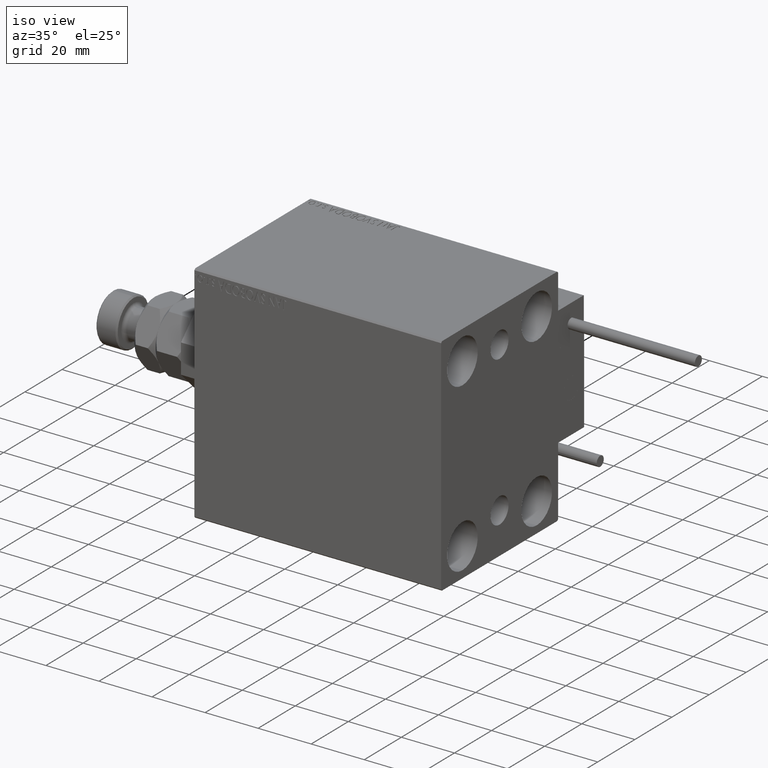
[diagram: clean part render]
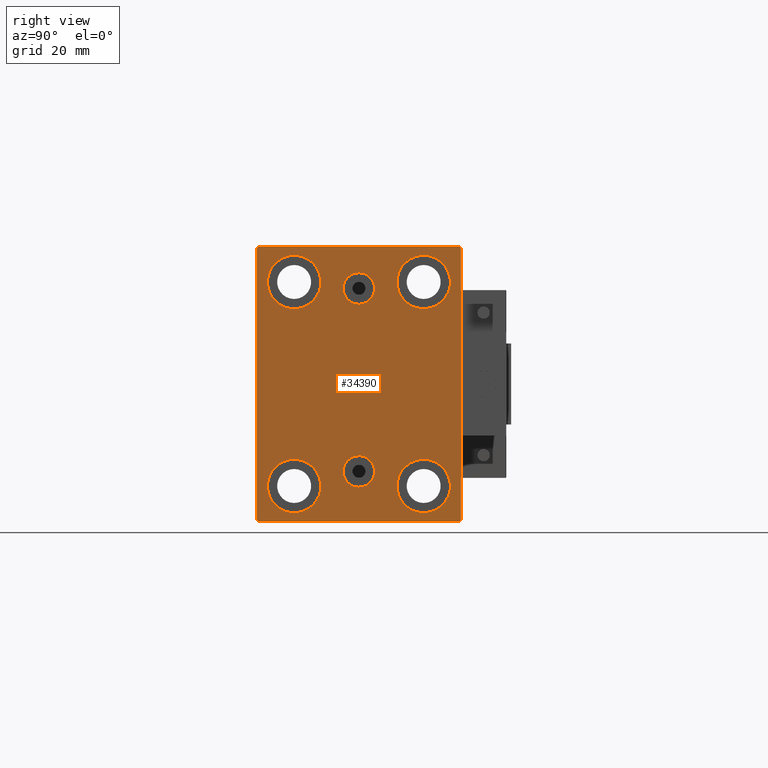
[diagram: tour spotlight — one face highlighted and labeled with its STEP entity id]
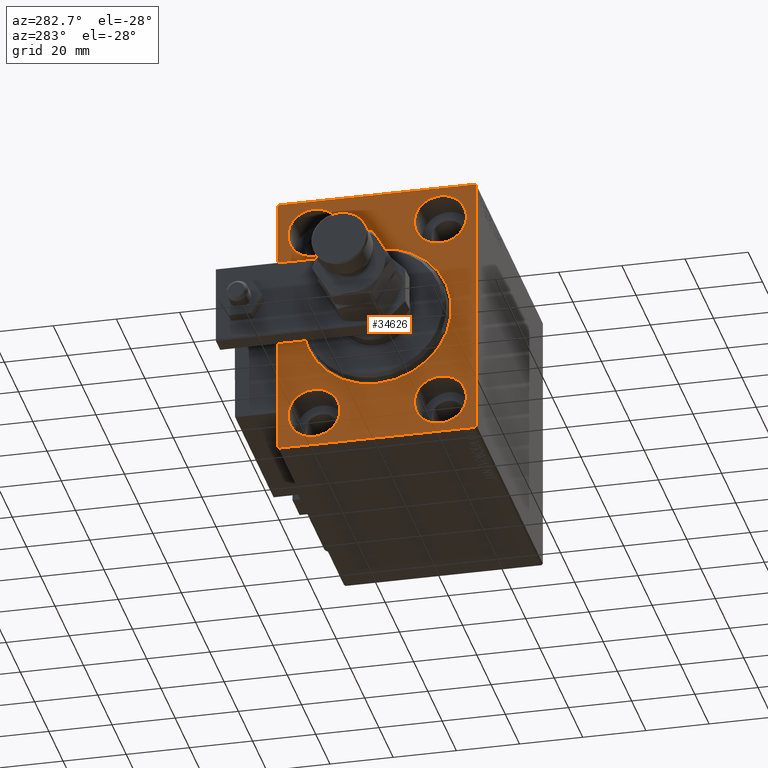
[diagram: tour spotlight — one face highlighted and labeled with its STEP entity id]
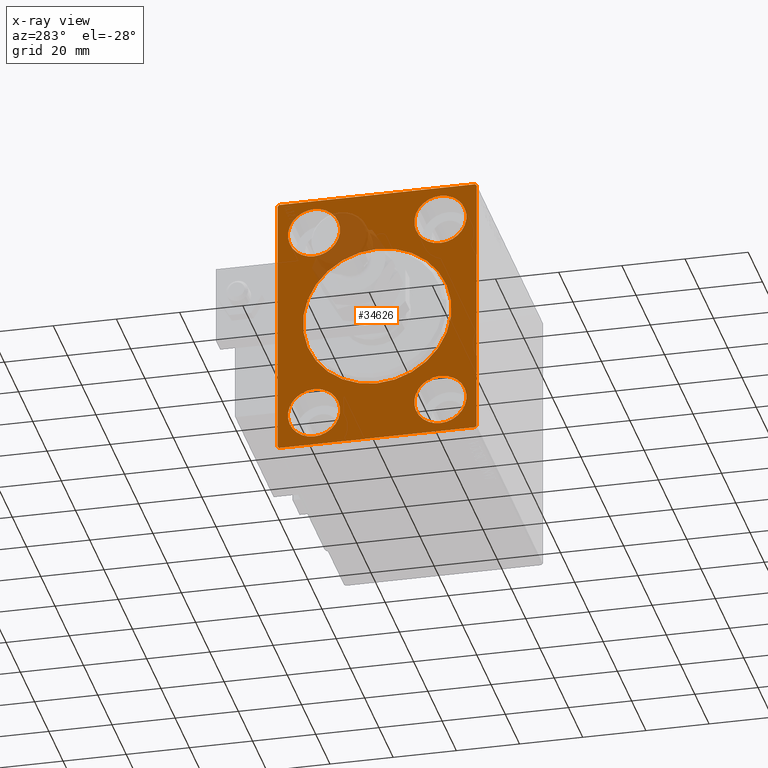
[diagram: x-ray of the same camera — body ghosted, this tour face saturated]
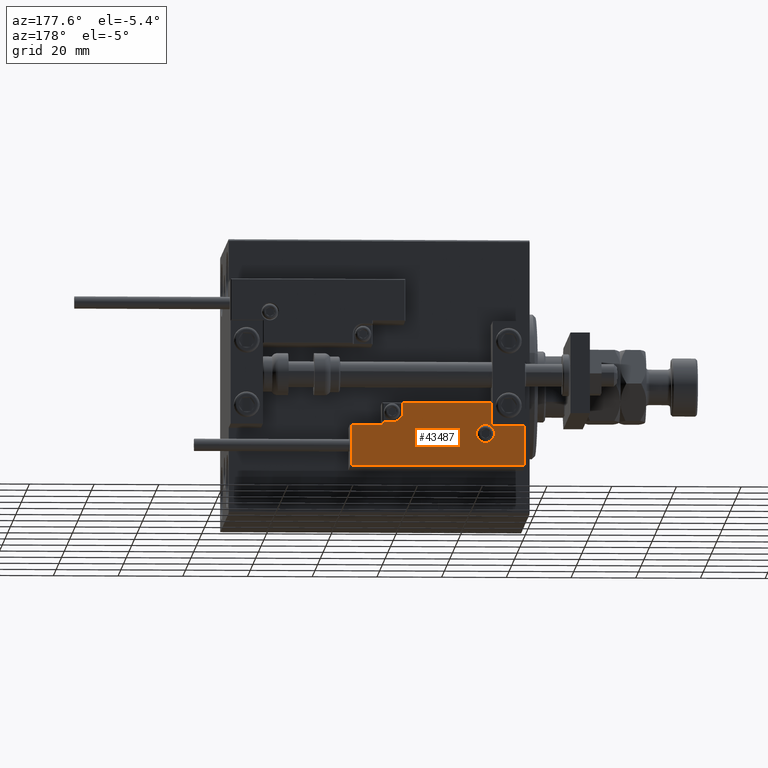
[diagram: tour spotlight — one face highlighted and labeled with its STEP entity id]
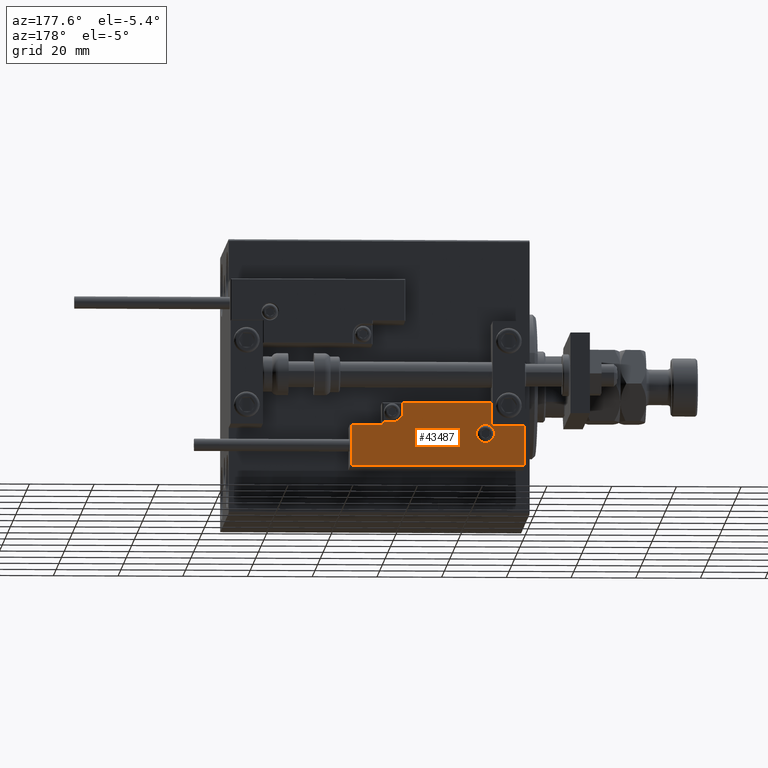
[diagram: tour spotlight — one face highlighted and labeled with its STEP entity id]
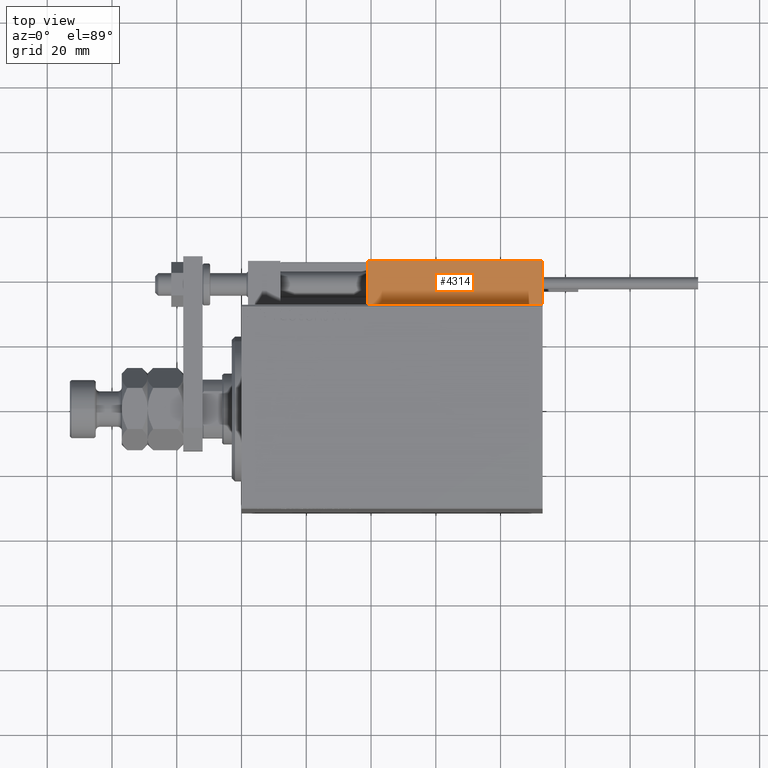
[diagram: tour spotlight — one face highlighted and labeled with its STEP entity id]
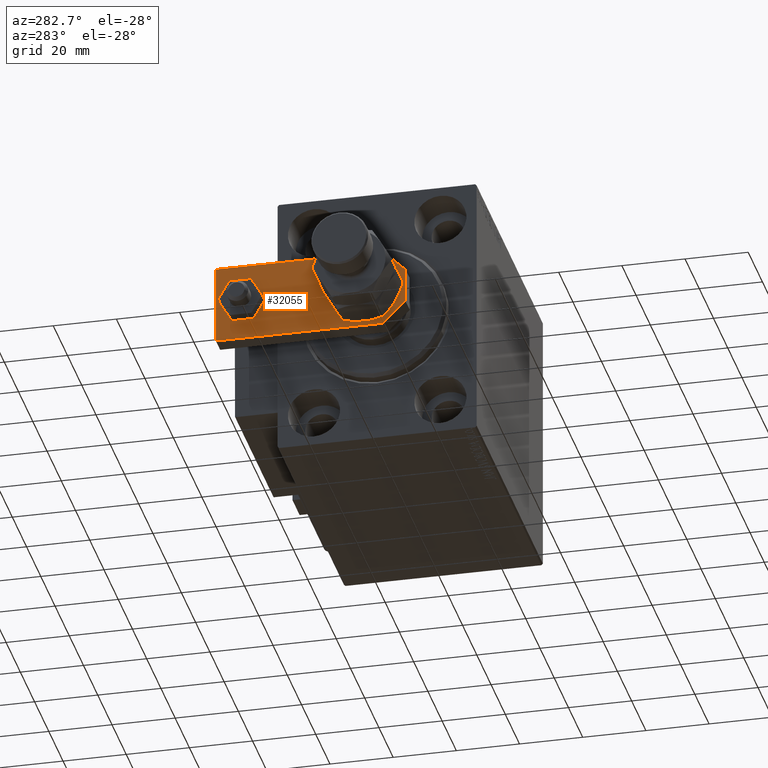
[diagram: tour spotlight — one face highlighted and labeled with its STEP entity id]
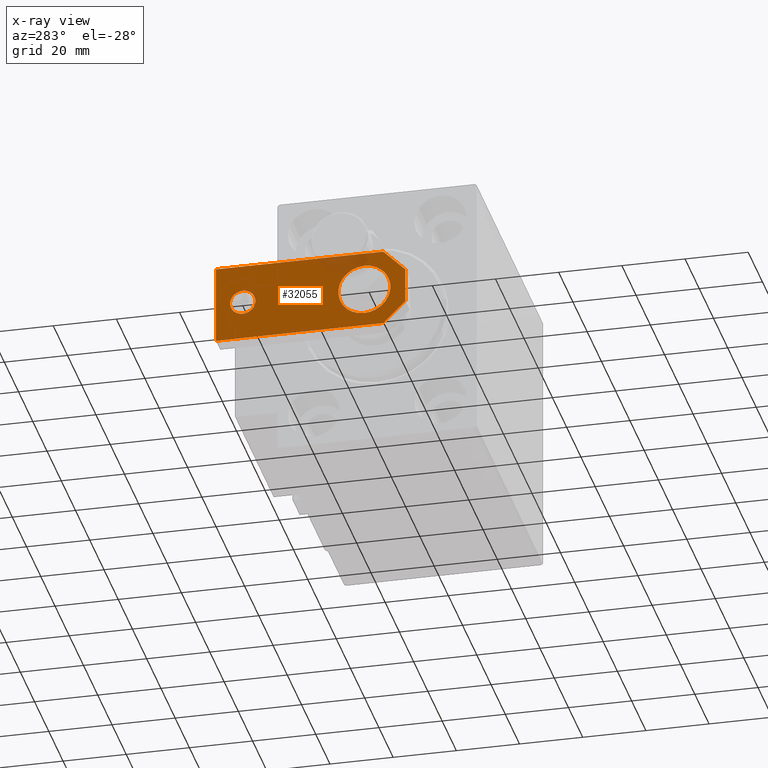
[diagram: x-ray of the same camera — body ghosted, this tour face saturated]
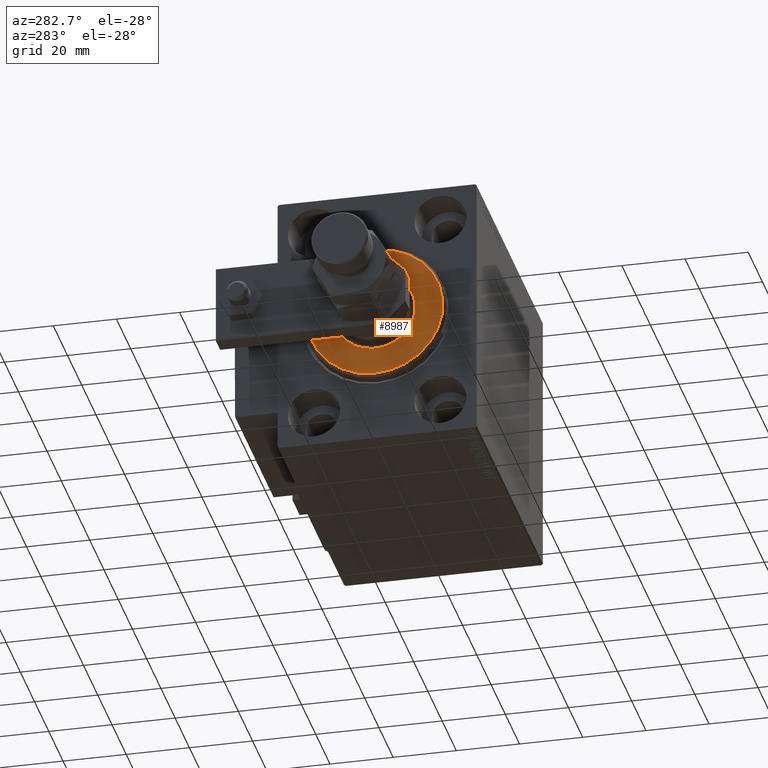
[diagram: tour spotlight — one face highlighted and labeled with its STEP entity id]
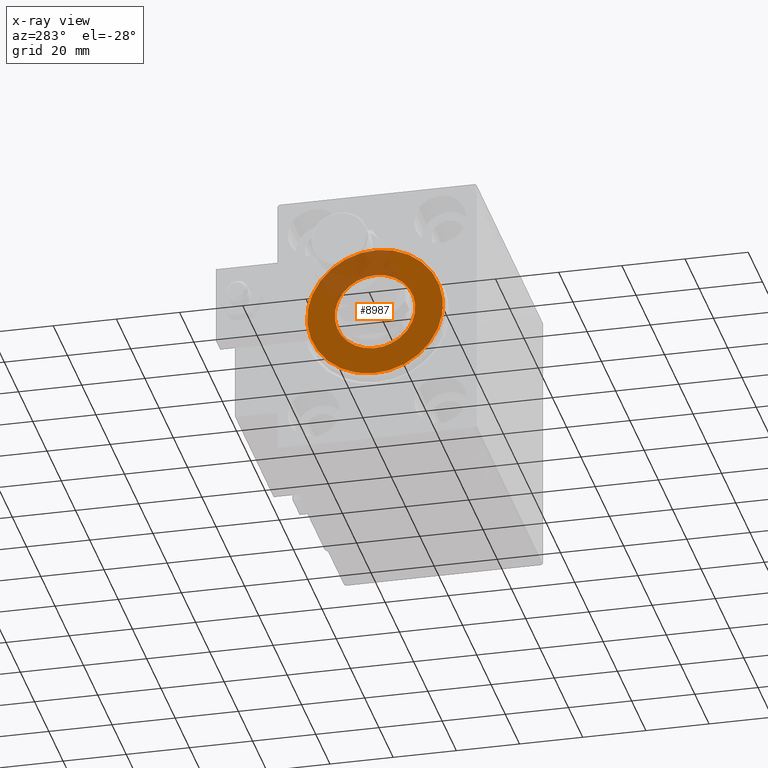
[diagram: x-ray of the same camera — body ghosted, this tour face saturated]
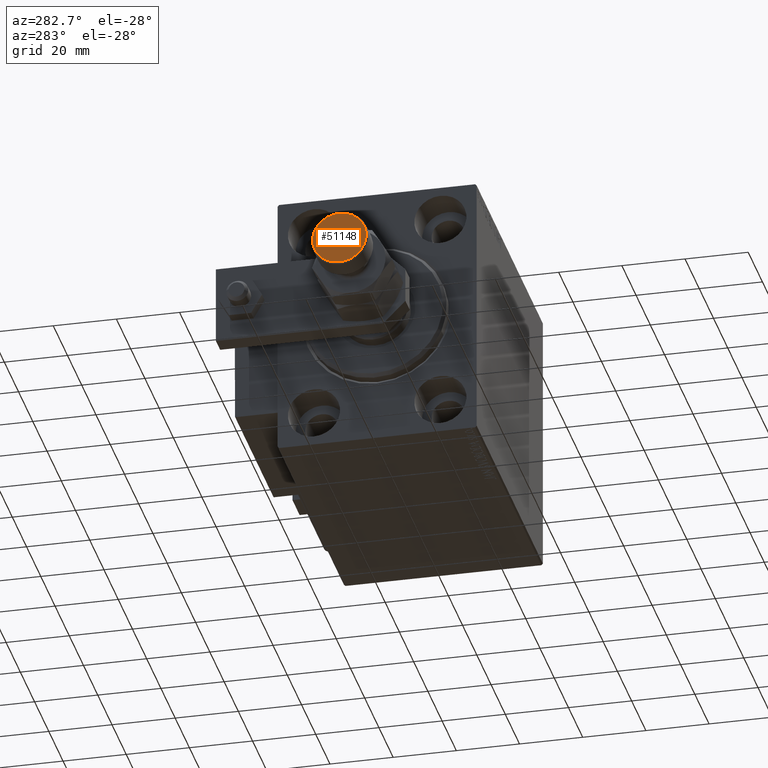
[diagram: tour spotlight — one face highlighted and labeled with its STEP entity id]
A machine part: a face-by-face anatomy tour. The part has 1330 B-rep faces; the first image is the clean iso view, then the 8 largest visible faces are spotlighted one at a time (largest first), each with its STEP entity span.

Face 1 — right view, entity #34390. In plain terms, the highlighted planar face has unit normal (1, 0, 0).
Definition (entity closure, byte-faithful):
#85 = EDGE_LOOP ( 'NONE', ( #38910, #43046 ) ) ;
#202 = LINE ( 'NONE', #8080, #5164 ) ;
#661 = LINE ( 'NONE', #3829, #19310 ) ;
#685 = CARTESIAN_POINT ( 'NONE',  ( 93.00000000000000000, -31.00000000000002842, -42.50000000000000711 ) ) ;
#725 = EDGE_LOOP ( 'NONE', ( #23575, #7088 ) ) ;
#997 = CARTESIAN_POINT ( 'NONE',  ( 93.00000000000000000, 19.99999999999999645, -31.49999999999999289 ) ) ;
#1061 = EDGE_CURVE ( 'NONE', #46498, #28877, #28049, .T. ) ;
#1182 = EDGE_LOOP ( 'NONE', ( #42568, #42014 ) ) ;
#1505 = LINE ( 'NONE', #22204, #29299 ) ;
#1834 = FACE_BOUND ( 'NONE', #10018, .T. ) ;
#1936 = CARTESIAN_POINT ( 'NONE',  ( 93.00000000000000000, 36.74999999999958789, -36.75000000000061107 ) ) ;
#2124 = CIRCLE ( 'NONE', #14661, 8.250000000000000000 ) ;
#2277 = CARTESIAN_POINT ( 'NONE',  ( 93.00000000000000000, -3.571693674697836683E-15, 29.50000000000001066 ) ) ;
#3501 = ORIENTED_EDGE ( 'NONE', *, *, #9753, .T. ) ;
#3522 = DIRECTION ( 'NONE',  ( 0.000000000000000000, -1.000000000000000000, -2.202823461557850341E-16 ) ) ;
#3551 = CARTESIAN_POINT ( 'NONE',  ( 93.00000000000000000, 20.00000000000000355, 23.25000000000000355 ) ) ;
#3829 = CARTESIAN_POINT ( 'NONE',  ( 93.00000000000000000, -36.74999999999998579, 36.74999999999998579 ) ) ;
#4078 = DIRECTION ( 'NONE',  ( 0.000000000000000000, -0.7071067811865474617, -0.7071067811865474617 ) ) ;
#4696 = ORIENTED_EDGE ( 'NONE', *, *, #20413, .T. ) ;
#4798 = AXIS2_PLACEMENT_3D ( 'NONE', #36447, #27324, #19481 ) ;
#4983 = DIRECTION ( 'NONE',  ( 0.000000000000000000, 0.000000000000000000, -1.000000000000000000 ) ) ;
#5047 = DIRECTION ( 'NONE',  ( 0.000000000000000000, 0.000000000000000000, 1.000000000000000000 ) ) ;
#5063 = CARTESIAN_POINT ( 'NONE',  ( 93.00000000000000000, -20.00000000000000355, -31.49999999999999289 ) ) ;
#5155 = ORIENTED_EDGE ( 'NONE', *, *, #6635, .T. ) ;
#5164 = VECTOR ( 'NONE', #39966, 999.9999999999998863 ) ;
#5370 = DIRECTION ( 'NONE',  ( 0.000000000000000000, 1.000000000000000000, 0.000000000000000000 ) ) ;
#5515 = FACE_BOUND ( 'NONE', #85, .T. ) ;
#5773 = DIRECTION ( 'NONE',  ( 1.000000000000000000, 0.000000000000000000, 0.000000000000000000 ) ) ;
#6251 = DIRECTION ( 'NONE',  ( 1.000000000000000000, 0.000000000000000000, 0.000000000000000000 ) ) ;
#6400 = LINE ( 'NONE', #1936, #10004 ) ;
#6448 = CARTESIAN_POINT ( 'NONE',  ( 93.00000000000000000, -31.50000000000000000, 42.49999999999999289 ) ) ;
#6635 = EDGE_CURVE ( 'NONE', #19146, #13201, #42276, .T. ) ;
#6709 = CIRCLE ( 'NONE', #7537, 4.859999999999999432 ) ;
#7088 = ORIENTED_EDGE ( 'NONE', *, *, #19232, .F. ) ;
#7537 = AXIS2_PLACEMENT_3D ( 'NONE', #2277, #16763, #4983 ) ;
#7716 = AXIS2_PLACEMENT_3D ( 'NONE', #47779, #46575, #11958 ) ;
#8080 = CARTESIAN_POINT ( 'NONE',  ( 93.00000000000000000, 36.75000000000044054, 36.74999999999941735 ) ) ;
#8190 = CARTESIAN_POINT ( 'NONE',  ( 93.00000000000000000, 19.99999999999999645, -23.24999999999999289 ) ) ;
#8288 = CARTESIAN_POINT ( 'NONE',  ( 93.00000000000000000, 3.306546357697852550E-15, -31.85999999999998522 ) ) ;
#8507 = ORIENTED_EDGE ( 'NONE', *, *, #51021, .T. ) ;
#8606 = VERTEX_POINT ( 'NONE', #10845 ) ;
#9241 = CARTESIAN_POINT ( 'NONE',  ( 93.00000000000000000, -20.00000000000000355, -31.49999999999999289 ) ) ;
#9708 = PLANE ( 'NONE',  #49427 ) ;
#9753 = EDGE_CURVE ( 'NONE', #28877, #46498, #17369, .T. ) ;
#9983 = CARTESIAN_POINT ( 'NONE',  ( 93.00000000000000000, 20.00000000000000355, 31.50000000000000000 ) ) ;
#10004 = VECTOR ( 'NONE', #22368, 1000.000000000000114 ) ;
#10018 = EDGE_LOOP ( 'NONE', ( #8507, #36592 ) ) ;
#10158 = DIRECTION ( 'NONE',  ( 0.000000000000000000, -1.632680918566406300E-16, 1.000000000000000000 ) ) ;
#10261 = AXIS2_PLACEMENT_3D ( 'NONE', #9983, #13397, #37702 ) ;
#10519 = VERTEX_POINT ( 'NONE', #49142 ) ;
#10845 = CARTESIAN_POINT ( 'NONE',  ( 93.00000000000000000, 20.00000000000000355, 39.74999999999999289 ) ) ;
#11104 = EDGE_LOOP ( 'NONE', ( #49646, #3501 ) ) ;
#11863 = VECTOR ( 'NONE', #3522, 1000.000000000000000 ) ;
#11958 = DIRECTION ( 'NONE',  ( 0.000000000000000000, 0.000000000000000000, 1.000000000000000000 ) ) ;
#12139 = DIRECTION ( 'NONE',  ( 1.000000000000000000, 0.000000000000000000, -0.000000000000000000 ) ) ;
#12180 = EDGE_CURVE ( 'NONE', #38243, #30679, #40834, .T. ) ;
#12246 = VECTOR ( 'NONE', #21651, 1000.000000000000000 ) ;
#12517 = EDGE_LOOP ( 'NONE', ( #27334, #4696, #5155, #35048, #26177, #42567, #49064, #15340 ) ) ;
#12619 = CIRCLE ( 'NONE', #20158, 8.250000000000000000 ) ;
#12648 = CARTESIAN_POINT ( 'NONE',  ( 93.00000000000000000, -19.99999999999999645, 39.74999999999999289 ) ) ;
#12846 = CARTESIAN_POINT ( 'NONE',  ( 93.00000000000000000, -19.99999999999999645, 31.50000000000000000 ) ) ;
#13201 = VERTEX_POINT ( 'NONE', #28278 ) ;
#13397 = DIRECTION ( 'NONE',  ( -1.000000000000000000, -0.000000000000000000, -0.000000000000000000 ) ) ;
#14661 = AXIS2_PLACEMENT_3D ( 'NONE', #5063, #17630, #41933 ) ;
#15095 = DIRECTION ( 'NONE',  ( 0.000000000000000000, 0.000000000000000000, 1.000000000000000000 ) ) ;
#15340 = ORIENTED_EDGE ( 'NONE', *, *, #36427, .T. ) ;
#15406 = VERTEX_POINT ( 'NONE', #35830 ) ;
#15833 = VERTEX_POINT ( 'NONE', #685 ) ;
#16445 = ORIENTED_EDGE ( 'NONE', *, *, #45246, .F. ) ;
#16763 = DIRECTION ( 'NONE',  ( 1.000000000000000000, 0.000000000000000000, 0.000000000000000000 ) ) ;
#16843 = ORIENTED_EDGE ( 'NONE', *, *, #45661, .F. ) ;
#17369 = CIRCLE ( 'NONE', #4798, 8.250000000000000000 ) ;
#17557 = FACE_OUTER_BOUND ( 'NONE', #12517, .T. ) ;
#17630 = DIRECTION ( 'NONE',  ( -1.000000000000000000, -0.000000000000000000, -0.000000000000000000 ) ) ;
#17675 = LINE ( 'NONE', #21611, #33452 ) ;
#18561 = AXIS2_PLACEMENT_3D ( 'NONE', #33989, #6251, #26915 ) ;
#18820 = EDGE_CURVE ( 'NONE', #15833, #49068, #17675, .T. ) ;
#19146 = VERTEX_POINT ( 'NONE', #34843 ) ;
#19232 = EDGE_CURVE ( 'NONE', #19264, #33247, #6709, .T. ) ;
#19249 = CARTESIAN_POINT ( 'NONE',  ( 93.00000000000000000, 31.50000000000000000, 42.50000000000000711 ) ) ;
#19264 = VERTEX_POINT ( 'NONE', #22203 ) ;
#19310 = VECTOR ( 'NONE', #4078, 1000.000000000000114 ) ;
#19481 = DIRECTION ( 'NONE',  ( 0.000000000000000000, 0.000000000000000000, 1.000000000000000000 ) ) ;
#19934 = DIRECTION ( 'NONE',  ( -1.000000000000000000, -0.000000000000000000, -0.000000000000000000 ) ) ;
#20158 = AXIS2_PLACEMENT_3D ( 'NONE', #9241, #48737, #5047 ) ;
#20257 = EDGE_CURVE ( 'NONE', #29138, #28270, #1505, .T. ) ;
#20413 = EDGE_CURVE ( 'NONE', #30035, #19146, #661, .T. ) ;
#20675 = CARTESIAN_POINT ( 'NONE',  ( 93.00000000000000000, 31.50000000000001421, -42.00000000000003553 ) ) ;
#20690 = DIRECTION ( 'NONE',  ( 0.000000000000000000, 0.000000000000000000, 1.000000000000000000 ) ) ;
#20980 = DIRECTION ( 'NONE',  ( -0.000000000000000000, 0.7071067811865376918, -0.7071067811865573427 ) ) ;
#21442 = VERTEX_POINT ( 'NONE', #49347 ) ;
#21611 = CARTESIAN_POINT ( 'NONE',  ( 93.00000000000000000, -31.50000000000000000, -42.50000000000000711 ) ) ;
#21651 = DIRECTION ( 'NONE',  ( 0.000000000000000000, 0.000000000000000000, -1.000000000000000000 ) ) ;
#21753 = DIRECTION ( 'NONE',  ( 0.000000000000000000, 0.000000000000000000, -1.000000000000000000 ) ) ;
#22203 = CARTESIAN_POINT ( 'NONE',  ( 93.00000000000000000, -2.976515330312223011E-15, 34.36000000000000654 ) ) ;
#22204 = CARTESIAN_POINT ( 'NONE',  ( 93.00000000000000000, 31.50000000000001421, -42.50000000000000711 ) ) ;
#22368 = DIRECTION ( 'NONE',  ( -0.000000000000000000, 0.7071067811865573427, 0.7071067811865376918 ) ) ;
#22683 = CIRCLE ( 'NONE', #29358, 8.249999999999992895 ) ;
#23575 = ORIENTED_EDGE ( 'NONE', *, *, #32921, .F. ) ;
#24446 = CARTESIAN_POINT ( 'NONE',  ( 93.00000000000000000, 19.99999999999999645, -39.74999999999999289 ) ) ;
#24644 = LINE ( 'NONE', #41095, #45229 ) ;
#24724 = CARTESIAN_POINT ( 'NONE',  ( 93.00000000000000000, 31.00000000000002842, -42.50000000000000711 ) ) ;
#25133 = DIRECTION ( 'NONE',  ( -1.000000000000000000, -0.000000000000000000, -0.000000000000000000 ) ) ;
#25412 = FACE_BOUND ( 'NONE', #46945, .T. ) ;
#25421 = DIRECTION ( 'NONE',  ( -1.000000000000000000, -0.000000000000000000, -0.000000000000000000 ) ) ;
#26177 = ORIENTED_EDGE ( 'NONE', *, *, #18820, .T. ) ;
#26915 = DIRECTION ( 'NONE',  ( 0.000000000000000000, 0.000000000000000000, -1.000000000000000000 ) ) ;
#26988 = CIRCLE ( 'NONE', #10261, 8.249999999999992895 ) ;
#27323 = VERTEX_POINT ( 'NONE', #3551 ) ;
#27324 = DIRECTION ( 'NONE',  ( -1.000000000000000000, -0.000000000000000000, -0.000000000000000000 ) ) ;
#27334 = ORIENTED_EDGE ( 'NONE', *, *, #32188, .T. ) ;
#27470 = EDGE_CURVE ( 'NONE', #49068, #29138, #6400, .T. ) ;
#28049 = CIRCLE ( 'NONE', #39701, 8.250000000000000000 ) ;
#28270 = VERTEX_POINT ( 'NONE', #46720 ) ;
#28278 = CARTESIAN_POINT ( 'NONE',  ( 93.00000000000000000, -31.50000000000000000, -42.00000000000002132 ) ) ;
#28877 = VERTEX_POINT ( 'NONE', #8190 ) ;
#29138 = VERTEX_POINT ( 'NONE', #20675 ) ;
#29299 = VECTOR ( 'NONE', #10158, 1000.000000000000000 ) ;
#29358 = AXIS2_PLACEMENT_3D ( 'NONE', #32738, #25421, #48427 ) ;
#29581 = CARTESIAN_POINT ( 'NONE',  ( 93.00000000000000000, 31.00000000000000000, 42.50000000000000711 ) ) ;
#30035 = VERTEX_POINT ( 'NONE', #40475 ) ;
#30271 = CIRCLE ( 'NONE', #7716, 8.249999999999992895 ) ;
#30573 = AXIS2_PLACEMENT_3D ( 'NONE', #32270, #12139, #44041 ) ;
#30679 = VERTEX_POINT ( 'NONE', #12648 ) ;
#30719 = EDGE_CURVE ( 'NONE', #15406, #21442, #12619, .T. ) ;
#30845 = AXIS2_PLACEMENT_3D ( 'NONE', #12846, #25133, #20690 ) ;
#31270 = LINE ( 'NONE', #19249, #11863 ) ;
#32188 = EDGE_CURVE ( 'NONE', #39547, #30035, #31270, .T. ) ;
#32270 = CARTESIAN_POINT ( 'NONE',  ( 93.00000000000000000, 3.306546357697852550E-15, -26.99999999999998934 ) ) ;
#32738 = CARTESIAN_POINT ( 'NONE',  ( 93.00000000000000000, 20.00000000000000355, 31.50000000000000000 ) ) ;
#32921 = EDGE_CURVE ( 'NONE', #33247, #19264, #41091, .T. ) ;
#33075 = AXIS2_PLACEMENT_3D ( 'NONE', #50682, #38634, #15095 ) ;
#33247 = VERTEX_POINT ( 'NONE', #46465 ) ;
#33452 = VECTOR ( 'NONE', #5370, 1000.000000000000000 ) ;
#33989 = CARTESIAN_POINT ( 'NONE',  ( 93.00000000000000000, -3.571693674697836683E-15, 29.50000000000001066 ) ) ;
#34042 = CARTESIAN_POINT ( 'NONE',  ( 93.00000000000000000, -19.99999999999999645, 23.25000000000000355 ) ) ;
#34390 = ADVANCED_FACE ( 'NONE', ( #37424, #25412, #41352, #45800, #1834, #5515, #17557 ), #9708, .T. ) ;
#34843 = CARTESIAN_POINT ( 'NONE',  ( 93.00000000000000000, -31.50000000000000000, 41.99999999999997868 ) ) ;
#35048 = ORIENTED_EDGE ( 'NONE', *, *, #50976, .T. ) ;
#35602 = CIRCLE ( 'NONE', #33075, 4.859999999999995879 ) ;
#35830 = CARTESIAN_POINT ( 'NONE',  ( 93.00000000000000000, -20.00000000000000355, -39.74999999999999289 ) ) ;
#36427 = EDGE_CURVE ( 'NONE', #28270, #39547, #202, .T. ) ;
#36447 = CARTESIAN_POINT ( 'NONE',  ( 93.00000000000000000, 19.99999999999999645, -31.49999999999999289 ) ) ;
#36592 = ORIENTED_EDGE ( 'NONE', *, *, #38347, .T. ) ;
#37424 = FACE_BOUND ( 'NONE', #725, .T. ) ;
#37510 = EDGE_CURVE ( 'NONE', #30679, #38243, #30271, .T. ) ;
#37661 = VERTEX_POINT ( 'NONE', #8288 ) ;
#37702 = DIRECTION ( 'NONE',  ( 0.000000000000000000, 0.000000000000000000, 1.000000000000000000 ) ) ;
#38243 = VERTEX_POINT ( 'NONE', #34042 ) ;
#38347 = EDGE_CURVE ( 'NONE', #8606, #27323, #26988, .T. ) ;
#38634 = DIRECTION ( 'NONE',  ( 1.000000000000000000, 0.000000000000000000, -0.000000000000000000 ) ) ;
#38910 = ORIENTED_EDGE ( 'NONE', *, *, #30719, .T. ) ;
#39547 = VERTEX_POINT ( 'NONE', #29581 ) ;
#39701 = AXIS2_PLACEMENT_3D ( 'NONE', #997, #19934, #43729 ) ;
#39966 = DIRECTION ( 'NONE',  ( -0.000000000000000000, -0.7071067811865376918, 0.7071067811865574537 ) ) ;
#40475 = CARTESIAN_POINT ( 'NONE',  ( 93.00000000000000000, -30.99999999999998579, 42.49999999999999289 ) ) ;
#40834 = CIRCLE ( 'NONE', #30845, 8.249999999999992895 ) ;
#41091 = CIRCLE ( 'NONE', #18561, 4.859999999999999432 ) ;
#41095 = CARTESIAN_POINT ( 'NONE',  ( 93.00000000000000000, -36.75000000000045475, -36.74999999999943867 ) ) ;
#41352 = FACE_BOUND ( 'NONE', #11104, .T. ) ;
#41608 = CARTESIAN_POINT ( 'NONE',  ( 93.00000000000000000, 0.000000000000000000, 0.000000000000000000 ) ) ;
#41933 = DIRECTION ( 'NONE',  ( 0.000000000000000000, 0.000000000000000000, 1.000000000000000000 ) ) ;
#42014 = ORIENTED_EDGE ( 'NONE', *, *, #37510, .T. ) ;
#42276 = LINE ( 'NONE', #6448, #12246 ) ;
#42567 = ORIENTED_EDGE ( 'NONE', *, *, #27470, .T. ) ;
#42568 = ORIENTED_EDGE ( 'NONE', *, *, #12180, .T. ) ;
#43046 = ORIENTED_EDGE ( 'NONE', *, *, #44473, .T. ) ;
#43729 = DIRECTION ( 'NONE',  ( 0.000000000000000000, 0.000000000000000000, 1.000000000000000000 ) ) ;
#44041 = DIRECTION ( 'NONE',  ( 0.000000000000000000, 0.000000000000000000, 1.000000000000000000 ) ) ;
#44473 = EDGE_CURVE ( 'NONE', #21442, #15406, #2124, .T. ) ;
#45229 = VECTOR ( 'NONE', #20980, 1000.000000000000114 ) ;
#45246 = EDGE_CURVE ( 'NONE', #37661, #10519, #35602, .T. ) ;
#45661 = EDGE_CURVE ( 'NONE', #10519, #37661, #50613, .T. ) ;
#45800 = FACE_BOUND ( 'NONE', #1182, .T. ) ;
#46465 = CARTESIAN_POINT ( 'NONE',  ( 93.00000000000000000, -3.571693674697836683E-15, 24.64000000000001123 ) ) ;
#46498 = VERTEX_POINT ( 'NONE', #24446 ) ;
#46575 = DIRECTION ( 'NONE',  ( -1.000000000000000000, -0.000000000000000000, -0.000000000000000000 ) ) ;
#46720 = CARTESIAN_POINT ( 'NONE',  ( 93.00000000000000000, 31.50000000000000000, 41.99999999999999289 ) ) ;
#46945 = EDGE_LOOP ( 'NONE', ( #16445, #16843 ) ) ;
#47779 = CARTESIAN_POINT ( 'NONE',  ( 93.00000000000000000, -19.99999999999999645, 31.50000000000000000 ) ) ;
#48427 = DIRECTION ( 'NONE',  ( 0.000000000000000000, 0.000000000000000000, 1.000000000000000000 ) ) ;
#48737 = DIRECTION ( 'NONE',  ( -1.000000000000000000, -0.000000000000000000, -0.000000000000000000 ) ) ;
#49064 = ORIENTED_EDGE ( 'NONE', *, *, #20257, .T. ) ;
#49068 = VERTEX_POINT ( 'NONE', #24724 ) ;
#49142 = CARTESIAN_POINT ( 'NONE',  ( 93.00000000000000000, 3.901724702083465828E-15, -22.13999999999999346 ) ) ;
#49347 = CARTESIAN_POINT ( 'NONE',  ( 93.00000000000000000, -20.00000000000000355, -23.24999999999999289 ) ) ;
#49427 = AXIS2_PLACEMENT_3D ( 'NONE', #41608, #5773, #21753 ) ;
#49646 = ORIENTED_EDGE ( 'NONE', *, *, #1061, .T. ) ;
#50613 = CIRCLE ( 'NONE', #30573, 4.859999999999995879 ) ;
#50682 = CARTESIAN_POINT ( 'NONE',  ( 93.00000000000000000, 3.306546357697852550E-15, -26.99999999999998934 ) ) ;
#50976 = EDGE_CURVE ( 'NONE', #13201, #15833, #24644, .T. ) ;
#51021 = EDGE_CURVE ( 'NONE', #27323, #8606, #22683, .T. ) ;

Face 2 — auxiliary view, entity #34626. An x-ray twin of the same camera follows (body ghosted, this face saturated) — the face is partly hidden behind the body. In plain terms, the highlighted planar face has unit normal (1, 0, 0).
Definition (entity closure, byte-faithful):
#81 = LINE ( 'NONE', #16058, #28515 ) ;
#265 = VERTEX_POINT ( 'NONE', #10405 ) ;
#563 = CARTESIAN_POINT ( 'NONE',  ( 0.000000000000000000, 31.00000000000000000, 42.50000000000000711 ) ) ;
#1161 = CARTESIAN_POINT ( 'NONE',  ( 0.000000000000000000, 2.877919977996282293E-15, -23.50000000000001776 ) ) ;
#1755 = AXIS2_PLACEMENT_3D ( 'NONE', #38141, #11453, #34739 ) ;
#2152 = DIRECTION ( 'NONE',  ( -0.000000000000000000, -0.7071067811865376918, 0.7071067811865573427 ) ) ;
#2264 = VERTEX_POINT ( 'NONE', #31144 ) ;
#3065 = FACE_BOUND ( 'NONE', #24752, .T. ) ;
#3439 = EDGE_CURVE ( 'NONE', #8020, #25570, #14642, .T. ) ;
#3598 = CIRCLE ( 'NONE', #42027, 8.250000000000000000 ) ;
#3970 = VERTEX_POINT ( 'NONE', #34381 ) ;
#4389 = CARTESIAN_POINT ( 'NONE',  ( 0.000000000000000000, 19.99999999999999645, -23.24999999999999289 ) ) ;
#5405 = EDGE_LOOP ( 'NONE', ( #28395, #35576 ) ) ;
#5477 = CARTESIAN_POINT ( 'NONE',  ( 0.000000000000000000, -31.50000000000000000, 41.99999999999997868 ) ) ;
#5505 = DIRECTION ( 'NONE',  ( -1.000000000000000000, 0.000000000000000000, 0.000000000000000000 ) ) ;
#5763 = CARTESIAN_POINT ( 'NONE',  ( 0.000000000000000000, 19.99999999999999645, -31.49999999999999289 ) ) ;
#6115 = LINE ( 'NONE', #33592, #16323 ) ;
#6804 = EDGE_CURVE ( 'NONE', #35858, #45606, #28897, .T. ) ;
#6920 = ORIENTED_EDGE ( 'NONE', *, *, #47547, .F. ) ;
#7335 = CARTESIAN_POINT ( 'NONE',  ( 0.000000000000000000, 31.00000000000000000, 42.50000000000000711 ) ) ;
#7869 = CARTESIAN_POINT ( 'NONE',  ( 0.000000000000000000, 19.99999999999999645, -31.49999999999999289 ) ) ;
#8020 = VERTEX_POINT ( 'NONE', #4389 ) ;
#8060 = VECTOR ( 'NONE', #24462, 1000.000000000000000 ) ;
#8398 = CARTESIAN_POINT ( 'NONE',  ( 0.000000000000000000, 31.50000000000001421, -42.00000000000003553 ) ) ;
#8500 = CARTESIAN_POINT ( 'NONE',  ( 0.000000000000000000, -31.50000000000000000, -42.50000000000000711 ) ) ;
#8612 = VERTEX_POINT ( 'NONE', #26808 ) ;
#8898 = LINE ( 'NONE', #5477, #32505 ) ;
#9398 = EDGE_CURVE ( 'NONE', #31387, #34463, #30732, .T. ) ;
#9942 = EDGE_CURVE ( 'NONE', #35858, #43262, #46622, .T. ) ;
#10019 = DIRECTION ( 'NONE',  ( 0.000000000000000000, 0.000000000000000000, 1.000000000000000000 ) ) ;
#10283 = VERTEX_POINT ( 'NONE', #36903 ) ;
#10405 = CARTESIAN_POINT ( 'NONE',  ( 0.000000000000000000, -20.00000000000000355, -39.74999999999999289 ) ) ;
#10565 = DIRECTION ( 'NONE',  ( 0.000000000000000000, 0.000000000000000000, 1.000000000000000000 ) ) ;
#11081 = LINE ( 'NONE', #22860, #48557 ) ;
#11453 = DIRECTION ( 'NONE',  ( 1.000000000000000000, 0.000000000000000000, 0.000000000000000000 ) ) ;
#11754 = DIRECTION ( 'NONE',  ( -1.000000000000000000, 0.000000000000000000, 0.000000000000000000 ) ) ;
#11859 = CARTESIAN_POINT ( 'NONE',  ( 0.000000000000000000, 0.000000000000000000, 0.000000000000000000 ) ) ;
#12132 = ORIENTED_EDGE ( 'NONE', *, *, #47258, .F. ) ;
#12642 = CIRCLE ( 'NONE', #13513, 8.249999999999992895 ) ;
#12707 = EDGE_CURVE ( 'NONE', #8612, #13943, #48380, .T. ) ;
#13119 = DIRECTION ( 'NONE',  ( 0.000000000000000000, 0.000000000000000000, 1.000000000000000000 ) ) ;
#13265 = EDGE_CURVE ( 'NONE', #3970, #265, #30883, .T. ) ;
#13463 = DIRECTION ( 'NONE',  ( -1.000000000000000000, 0.000000000000000000, 0.000000000000000000 ) ) ;
#13485 = ORIENTED_EDGE ( 'NONE', *, *, #49166, .F. ) ;
#13513 = AXIS2_PLACEMENT_3D ( 'NONE', #39660, #39405, #36522 ) ;
#13943 = VERTEX_POINT ( 'NONE', #33288 ) ;
#14081 = DIRECTION ( 'NONE',  ( 1.000000000000000000, 0.000000000000000000, 0.000000000000000000 ) ) ;
#14642 = CIRCLE ( 'NONE', #17146, 8.250000000000000000 ) ;
#15160 = DIRECTION ( 'NONE',  ( 0.000000000000000000, 0.000000000000000000, 1.000000000000000000 ) ) ;
#15434 = VERTEX_POINT ( 'NONE', #7335 ) ;
#15584 = ORIENTED_EDGE ( 'NONE', *, *, #39219, .F. ) ;
#15604 = CARTESIAN_POINT ( 'NONE',  ( 0.000000000000000000, -19.99999999999999645, 31.50000000000000000 ) ) ;
#15895 = AXIS2_PLACEMENT_3D ( 'NONE', #11859, #19965, #35909 ) ;
#16058 = CARTESIAN_POINT ( 'NONE',  ( 0.000000000000000000, 31.50000000000001421, -42.00000000000003553 ) ) ;
#16185 = ORIENTED_EDGE ( 'NONE', *, *, #35569, .F. ) ;
#16301 = EDGE_CURVE ( 'NONE', #28019, #2264, #8898, .T. ) ;
#16323 = VECTOR ( 'NONE', #22092, 1000.000000000000000 ) ;
#16362 = EDGE_LOOP ( 'NONE', ( #21657, #45141 ) ) ;
#16535 = LINE ( 'NONE', #563, #17232 ) ;
#16562 = AXIS2_PLACEMENT_3D ( 'NONE', #26636, #14081, #30813 ) ;
#17146 = AXIS2_PLACEMENT_3D ( 'NONE', #7869, #31924, #21209 ) ;
#17232 = VECTOR ( 'NONE', #43751, 999.9999999999998863 ) ;
#17385 = CARTESIAN_POINT ( 'NONE',  ( 0.000000000000000000, 20.00000000000000355, 31.50000000000000000 ) ) ;
#18056 = AXIS2_PLACEMENT_3D ( 'NONE', #17385, #13463, #10565 ) ;
#19053 = PLANE ( 'NONE',  #1755 ) ;
#19093 = EDGE_CURVE ( 'NONE', #265, #3970, #35122, .T. ) ;
#19101 = CARTESIAN_POINT ( 'NONE',  ( 0.000000000000000000, 20.00000000000000355, 31.50000000000000000 ) ) ;
#19965 = DIRECTION ( 'NONE',  ( 1.000000000000000000, 0.000000000000000000, 0.000000000000000000 ) ) ;
#20701 = EDGE_CURVE ( 'NONE', #25463, #45606, #81, .T. ) ;
#20911 = CARTESIAN_POINT ( 'NONE',  ( 0.000000000000000000, 20.00000000000000355, 39.74999999999999289 ) ) ;
#21209 = DIRECTION ( 'NONE',  ( 0.000000000000000000, 0.000000000000000000, 1.000000000000000000 ) ) ;
#21355 = VECTOR ( 'NONE', #45168, 1000.000000000000000 ) ;
#21657 = ORIENTED_EDGE ( 'NONE', *, *, #13265, .F. ) ;
#22027 = ORIENTED_EDGE ( 'NONE', *, *, #3439, .F. ) ;
#22092 = DIRECTION ( 'NONE',  ( 0.000000000000000000, 0.000000000000000000, -1.000000000000000000 ) ) ;
#22464 = FACE_BOUND ( 'NONE', #47094, .T. ) ;
#22666 = ORIENTED_EDGE ( 'NONE', *, *, #20701, .T. ) ;
#22723 = FACE_BOUND ( 'NONE', #5405, .T. ) ;
#22860 = CARTESIAN_POINT ( 'NONE',  ( 0.000000000000000000, 31.50000000000000000, 42.50000000000000711 ) ) ;
#22958 = ORIENTED_EDGE ( 'NONE', *, *, #34727, .F. ) ;
#24104 = EDGE_CURVE ( 'NONE', #42493, #25561, #30773, .T. ) ;
#24462 = DIRECTION ( 'NONE',  ( 0.000000000000000000, 1.000000000000000000, 0.000000000000000000 ) ) ;
#24599 = DIRECTION ( 'NONE',  ( -0.000000000000000000, 0.7071067811865474617, 0.7071067811865474617 ) ) ;
#24752 = EDGE_LOOP ( 'NONE', ( #13485, #34028 ) ) ;
#24869 = VECTOR ( 'NONE', #2152, 1000.000000000000114 ) ;
#25143 = CARTESIAN_POINT ( 'NONE',  ( 0.000000000000000000, -31.50000000000000000, -42.00000000000002132 ) ) ;
#25355 = ORIENTED_EDGE ( 'NONE', *, *, #6804, .F. ) ;
#25463 = VERTEX_POINT ( 'NONE', #8398 ) ;
#25561 = VERTEX_POINT ( 'NONE', #1161 ) ;
#25570 = VERTEX_POINT ( 'NONE', #41188 ) ;
#25849 = AXIS2_PLACEMENT_3D ( 'NONE', #15604, #31559, #27635 ) ;
#26636 = CARTESIAN_POINT ( 'NONE',  ( 0.000000000000000000, 0.000000000000000000, 0.000000000000000000 ) ) ;
#26808 = CARTESIAN_POINT ( 'NONE',  ( 0.000000000000000000, -19.99999999999999645, 23.25000000000000355 ) ) ;
#27635 = DIRECTION ( 'NONE',  ( 0.000000000000000000, 0.000000000000000000, 1.000000000000000000 ) ) ;
#28019 = VERTEX_POINT ( 'NONE', #29565 ) ;
#28395 = ORIENTED_EDGE ( 'NONE', *, *, #24104, .T. ) ;
#28515 = VECTOR ( 'NONE', #32016, 1000.000000000000114 ) ;
#28802 = DIRECTION ( 'NONE',  ( -1.000000000000000000, 0.000000000000000000, 0.000000000000000000 ) ) ;
#28841 = EDGE_CURVE ( 'NONE', #25561, #42493, #38441, .T. ) ;
#28897 = LINE ( 'NONE', #8500, #8060 ) ;
#29382 = DIRECTION ( 'NONE',  ( -1.000000000000000000, 0.000000000000000000, 0.000000000000000000 ) ) ;
#29565 = CARTESIAN_POINT ( 'NONE',  ( 0.000000000000000000, -31.50000000000000000, 41.99999999999997868 ) ) ;
#29732 = LINE ( 'NONE', #45433, #21355 ) ;
#30089 = AXIS2_PLACEMENT_3D ( 'NONE', #33566, #29382, #10019 ) ;
#30732 = CIRCLE ( 'NONE', #36541, 8.249999999999992895 ) ;
#30773 = CIRCLE ( 'NONE', #16562, 23.50000000000001776 ) ;
#30813 = DIRECTION ( 'NONE',  ( 0.000000000000000000, 0.000000000000000000, -1.000000000000000000 ) ) ;
#30883 = CIRCLE ( 'NONE', #48409, 8.250000000000000000 ) ;
#31144 = CARTESIAN_POINT ( 'NONE',  ( 0.000000000000000000, -30.99999999999998579, 42.49999999999999289 ) ) ;
#31330 = FACE_BOUND ( 'NONE', #41765, .T. ) ;
#31387 = VERTEX_POINT ( 'NONE', #33778 ) ;
#31559 = DIRECTION ( 'NONE',  ( -1.000000000000000000, 0.000000000000000000, 0.000000000000000000 ) ) ;
#31924 = DIRECTION ( 'NONE',  ( -1.000000000000000000, 0.000000000000000000, 0.000000000000000000 ) ) ;
#32016 = DIRECTION ( 'NONE',  ( 0.000000000000000000, -0.7071067811865573427, -0.7071067811865376918 ) ) ;
#32505 = VECTOR ( 'NONE', #24599, 1000.000000000000114 ) ;
#33288 = CARTESIAN_POINT ( 'NONE',  ( 0.000000000000000000, -19.99999999999999645, 39.74999999999999289 ) ) ;
#33566 = CARTESIAN_POINT ( 'NONE',  ( 0.000000000000000000, -20.00000000000000355, -31.49999999999999289 ) ) ;
#33592 = CARTESIAN_POINT ( 'NONE',  ( 0.000000000000000000, -31.50000000000000000, 42.49999999999999289 ) ) ;
#33778 = CARTESIAN_POINT ( 'NONE',  ( 0.000000000000000000, 20.00000000000000355, 23.25000000000000355 ) ) ;
#34028 = ORIENTED_EDGE ( 'NONE', *, *, #9398, .F. ) ;
#34381 = CARTESIAN_POINT ( 'NONE',  ( 0.000000000000000000, -20.00000000000000355, -23.24999999999999289 ) ) ;
#34463 = VERTEX_POINT ( 'NONE', #20911 ) ;
#34626 = ADVANCED_FACE ( 'NONE', ( #22723, #31330, #22464, #3065, #47275, #46255 ), #19053, .F. ) ;
#34727 = EDGE_CURVE ( 'NONE', #13943, #8612, #12642, .T. ) ;
#34739 = DIRECTION ( 'NONE',  ( 0.000000000000000000, 0.000000000000000000, -1.000000000000000000 ) ) ;
#34811 = ORIENTED_EDGE ( 'NONE', *, *, #12707, .F. ) ;
#35122 = CIRCLE ( 'NONE', #30089, 8.250000000000000000 ) ;
#35569 = EDGE_CURVE ( 'NONE', #15434, #2264, #11081, .T. ) ;
#35576 = ORIENTED_EDGE ( 'NONE', *, *, #28841, .T. ) ;
#35858 = VERTEX_POINT ( 'NONE', #38476 ) ;
#35909 = DIRECTION ( 'NONE',  ( 0.000000000000000000, 0.000000000000000000, -1.000000000000000000 ) ) ;
#36522 = DIRECTION ( 'NONE',  ( 0.000000000000000000, 0.000000000000000000, 1.000000000000000000 ) ) ;
#36541 = AXIS2_PLACEMENT_3D ( 'NONE', #19101, #11754, #15160 ) ;
#36903 = CARTESIAN_POINT ( 'NONE',  ( 0.000000000000000000, 31.50000000000000000, 41.99999999999999289 ) ) ;
#37413 = DIRECTION ( 'NONE',  ( 0.000000000000000000, 0.000000000000000000, 1.000000000000000000 ) ) ;
#38141 = CARTESIAN_POINT ( 'NONE',  ( 0.000000000000000000, 0.000000000000000000, 0.000000000000000000 ) ) ;
#38441 = CIRCLE ( 'NONE', #15895, 23.50000000000001776 ) ;
#38476 = CARTESIAN_POINT ( 'NONE',  ( 0.000000000000000000, -31.00000000000002842, -42.50000000000000711 ) ) ;
#39219 = EDGE_CURVE ( 'NONE', #25570, #8020, #3598, .T. ) ;
#39405 = DIRECTION ( 'NONE',  ( -1.000000000000000000, 0.000000000000000000, 0.000000000000000000 ) ) ;
#39455 = ORIENTED_EDGE ( 'NONE', *, *, #9942, .T. ) ;
#39660 = CARTESIAN_POINT ( 'NONE',  ( 0.000000000000000000, -19.99999999999999645, 31.50000000000000000 ) ) ;
#39959 = ORIENTED_EDGE ( 'NONE', *, *, #16301, .T. ) ;
#40623 = CIRCLE ( 'NONE', #18056, 8.249999999999992895 ) ;
#41188 = CARTESIAN_POINT ( 'NONE',  ( 0.000000000000000000, 19.99999999999999645, -39.74999999999999289 ) ) ;
#41765 = EDGE_LOOP ( 'NONE', ( #22027, #15584 ) ) ;
#42027 = AXIS2_PLACEMENT_3D ( 'NONE', #5763, #5505, #37413 ) ;
#42493 = VERTEX_POINT ( 'NONE', #45522 ) ;
#42545 = ORIENTED_EDGE ( 'NONE', *, *, #49332, .T. ) ;
#43262 = VERTEX_POINT ( 'NONE', #25143 ) ;
#43751 = DIRECTION ( 'NONE',  ( -0.000000000000000000, 0.7071067811865376918, -0.7071067811865574537 ) ) ;
#45141 = ORIENTED_EDGE ( 'NONE', *, *, #19093, .F. ) ;
#45168 = DIRECTION ( 'NONE',  ( 0.000000000000000000, -1.632680918566406300E-16, 1.000000000000000000 ) ) ;
#45433 = CARTESIAN_POINT ( 'NONE',  ( 0.000000000000000000, 31.50000000000001421, -42.50000000000000711 ) ) ;
#45522 = CARTESIAN_POINT ( 'NONE',  ( 0.000000000000000000, 0.000000000000000000, 23.50000000000001776 ) ) ;
#45606 = VERTEX_POINT ( 'NONE', #50866 ) ;
#46142 = DIRECTION ( 'NONE',  ( 0.000000000000000000, -1.000000000000000000, -2.202823461557850341E-16 ) ) ;
#46255 = FACE_OUTER_BOUND ( 'NONE', #46469, .T. ) ;
#46469 = EDGE_LOOP ( 'NONE', ( #6920, #39959, #16185, #42545, #12132, #22666, #25355, #39455 ) ) ;
#46622 = LINE ( 'NONE', #46876, #24869 ) ;
#46876 = CARTESIAN_POINT ( 'NONE',  ( 0.000000000000000000, -31.00000000000002842, -42.50000000000000711 ) ) ;
#47094 = EDGE_LOOP ( 'NONE', ( #22958, #34811 ) ) ;
#47258 = EDGE_CURVE ( 'NONE', #25463, #10283, #29732, .T. ) ;
#47275 = FACE_BOUND ( 'NONE', #16362, .T. ) ;
#47547 = EDGE_CURVE ( 'NONE', #28019, #43262, #6115, .T. ) ;
#48380 = CIRCLE ( 'NONE', #25849, 8.249999999999992895 ) ;
#48409 = AXIS2_PLACEMENT_3D ( 'NONE', #48678, #28802, #13119 ) ;
#48557 = VECTOR ( 'NONE', #46142, 1000.000000000000000 ) ;
#48678 = CARTESIAN_POINT ( 'NONE',  ( 0.000000000000000000, -20.00000000000000355, -31.49999999999999289 ) ) ;
#49166 = EDGE_CURVE ( 'NONE', #34463, #31387, #40623, .T. ) ;
#49332 = EDGE_CURVE ( 'NONE', #15434, #10283, #16535, .T. ) ;
#50866 = CARTESIAN_POINT ( 'NONE',  ( 0.000000000000000000, 31.00000000000002842, -42.50000000000000711 ) ) ;

Face 3 — auxiliary view, entity #43487. In plain terms, the highlighted planar face has unit normal (0, 1, -0).
Definition (entity closure, byte-faithful):
#545 = CARTESIAN_POINT ( 'NONE',  ( 13.99999999999999822, 6.300000000000001599, 14.00000000000000000 ) ) ;
#1662 = DIRECTION ( 'NONE',  ( 1.000000000000000000, 0.000000000000000000, 0.000000000000000000 ) ) ;
#1682 = VERTEX_POINT ( 'NONE', #29975 ) ;
#1710 = EDGE_CURVE ( 'NONE', #12714, #22894, #29458, .T. ) ;
#1808 = VERTEX_POINT ( 'NONE', #28357 ) ;
#3115 = ORIENTED_EDGE ( 'NONE', *, *, #1710, .T. ) ;
#3265 = VECTOR ( 'NONE', #40685, 1000.000000000000000 ) ;
#3422 = DIRECTION ( 'NONE',  ( 1.000000000000000000, -1.734723475976796001E-16, 0.000000000000000000 ) ) ;
#4135 = VERTEX_POINT ( 'NONE', #16554 ) ;
#4362 = DIRECTION ( 'NONE',  ( 0.000000000000000000, -0.000000000000000000, -1.000000000000000000 ) ) ;
#4591 = CARTESIAN_POINT ( 'NONE',  ( 10.69999999999999929, 3.000000000000003109, 14.00000000000000000 ) ) ;
#4592 = VECTOR ( 'NONE', #34217, 1000.000000000000000 ) ;
#5338 = EDGE_CURVE ( 'NONE', #22894, #4135, #16697, .T. ) ;
#6810 = ORIENTED_EDGE ( 'NONE', *, *, #12768, .T. ) ;
#7180 = CARTESIAN_POINT ( 'NONE',  ( 16.69999999999999929, 6.300000000000003375, 14.00000000000000000 ) ) ;
#7469 = CARTESIAN_POINT ( 'NONE',  ( 13.99999999999999822, 3.000000000000002665, 14.00000000000000000 ) ) ;
#7822 = CARTESIAN_POINT ( 'NONE',  ( -26.69999999999993534, 19.70000000000002061, 14.00000000000000000 ) ) ;
#7873 = LINE ( 'NONE', #35353, #27410 ) ;
#8084 = DIRECTION ( 'NONE',  ( 1.000000000000000000, 0.000000000000000000, 0.000000000000000000 ) ) ;
#9374 = CARTESIAN_POINT ( 'NONE',  ( -26.69999999999994600, 7.000000000000005329, 14.00000000000000000 ) ) ;
#9637 = EDGE_CURVE ( 'NONE', #20693, #28042, #10688, .T. ) ;
#10219 = CARTESIAN_POINT ( 'NONE',  ( 26.70000000000006324, 20.00000000000001776, 14.00000000000000000 ) ) ;
#10478 = VECTOR ( 'NONE', #31255, 1000.000000000000000 ) ;
#10504 = ORIENTED_EDGE ( 'NONE', *, *, #9637, .T. ) ;
#10688 = CIRCLE ( 'NONE', #39878, 2.800000000000000266 ) ;
#11050 = EDGE_CURVE ( 'NONE', #35838, #13391, #7873, .T. ) ;
#11144 = DIRECTION ( 'NONE',  ( 0.000000000000000000, -0.000000000000000000, -1.000000000000000000 ) ) ;
#11156 = DIRECTION ( 'NONE',  ( 9.912705577010318647E-16, 1.000000000000000000, 0.000000000000000000 ) ) ;
#12571 = CIRCLE ( 'NONE', #26778, 2.800000000000000266 ) ;
#12714 = VERTEX_POINT ( 'NONE', #26873 ) ;
#12753 = CARTESIAN_POINT ( 'NONE',  ( -14.79999999999994920, 9.800000000000004263, 14.00000000000000000 ) ) ;
#12768 = EDGE_CURVE ( 'NONE', #1808, #37129, #36245, .T. ) ;
#13080 = VERTEX_POINT ( 'NONE', #7180 ) ;
#13391 = VERTEX_POINT ( 'NONE', #27710 ) ;
#14929 = ORIENTED_EDGE ( 'NONE', *, *, #44608, .T. ) ;
#15841 = EDGE_CURVE ( 'NONE', #28042, #20693, #12571, .T. ) ;
#16060 = ORIENTED_EDGE ( 'NONE', *, *, #15841, .T. ) ;
#16554 = CARTESIAN_POINT ( 'NONE',  ( -26.69999999999994600, 7.300000000000005151, 14.00000000000000000 ) ) ;
#16578 = ORIENTED_EDGE ( 'NONE', *, *, #27246, .T. ) ;
#16697 = LINE ( 'NONE', #9374, #22242 ) ;
#17361 = CARTESIAN_POINT ( 'NONE',  ( 10.69999999999999929, 3.000000000000003109, 14.00000000000000000 ) ) ;
#18266 = CARTESIAN_POINT ( 'NONE',  ( -16.69999999999999218, 3.252606517456513302E-15, 14.00000000000000000 ) ) ;
#18371 = VECTOR ( 'NONE', #11156, 1000.000000000000000 ) ;
#18621 = CARTESIAN_POINT ( 'NONE',  ( 16.69999999999999929, 7.300000000000009592, 14.00000000000000000 ) ) ;
#19236 = CARTESIAN_POINT ( 'NONE',  ( 17.00000000000000000, 6.300000000000003375, 14.00000000000000000 ) ) ;
#19701 = VECTOR ( 'NONE', #34917, 1000.000000000000000 ) ;
#19885 = ORIENTED_EDGE ( 'NONE', *, *, #42773, .T. ) ;
#20450 = VECTOR ( 'NONE', #38122, 1000.000000000000000 ) ;
#20693 = VERTEX_POINT ( 'NONE', #43786 ) ;
#21730 = CARTESIAN_POINT ( 'NONE',  ( -17.59999999999994813, 9.800000000000004263, 14.00000000000000000 ) ) ;
#22242 = VECTOR ( 'NONE', #48870, 1000.000000000000000 ) ;
#22894 = VERTEX_POINT ( 'NONE', #7822 ) ;
#23797 = LINE ( 'NONE', #42440, #46397 ) ;
#25720 = ORIENTED_EDGE ( 'NONE', *, *, #5338, .T. ) ;
#26107 = AXIS2_PLACEMENT_3D ( 'NONE', #7469, #11144, #27107 ) ;
#26517 = EDGE_LOOP ( 'NONE', ( #10504, #16060 ) ) ;
#26778 = AXIS2_PLACEMENT_3D ( 'NONE', #12753, #4362, #1662 ) ;
#26873 = CARTESIAN_POINT ( 'NONE',  ( 26.70000000000006324, 19.70000000000001705, 14.00000000000000000 ) ) ;
#27070 = DIRECTION ( 'NONE',  ( 1.000000000000000000, 0.000000000000000000, 0.000000000000000000 ) ) ;
#27107 = DIRECTION ( 'NONE',  ( 1.000000000000000000, 0.000000000000000000, 0.000000000000000000 ) ) ;
#27246 = EDGE_CURVE ( 'NONE', #13080, #35838, #42031, .T. ) ;
#27410 = VECTOR ( 'NONE', #3422, 1000.000000000000000 ) ;
#27710 = CARTESIAN_POINT ( 'NONE',  ( 26.70000000000006324, 7.300000000000007816, 14.00000000000000000 ) ) ;
#27960 = FACE_OUTER_BOUND ( 'NONE', #39425, .T. ) ;
#28042 = VERTEX_POINT ( 'NONE', #21730 ) ;
#28357 = CARTESIAN_POINT ( 'NONE',  ( 10.69999999999999929, 0.3000000000000032085, 14.00000000000000000 ) ) ;
#29246 = CARTESIAN_POINT ( 'NONE',  ( -16.99999999999999289, 7.300000000000003375, 14.00000000000000000 ) ) ;
#29458 = LINE ( 'NONE', #45419, #19701 ) ;
#29975 = CARTESIAN_POINT ( 'NONE',  ( -16.69999999999999218, 0.3000000000000032085, 14.00000000000000000 ) ) ;
#30022 = LINE ( 'NONE', #29246, #20450 ) ;
#31210 = VERTEX_POINT ( 'NONE', #545 ) ;
#31255 = DIRECTION ( 'NONE',  ( 1.000000000000000000, 5.782411586589357639E-16, -0.000000000000000000 ) ) ;
#32189 = ORIENTED_EDGE ( 'NONE', *, *, #43364, .T. ) ;
#32645 = CIRCLE ( 'NONE', #26107, 3.299999999999997158 ) ;
#33269 = EDGE_CURVE ( 'NONE', #37129, #31210, #32645, .T. ) ;
#34217 = DIRECTION ( 'NONE',  ( 0.000000000000000000, -1.000000000000000000, 0.000000000000000000 ) ) ;
#34672 = VECTOR ( 'NONE', #42119, 1000.000000000000000 ) ;
#34917 = DIRECTION ( 'NONE',  ( -1.000000000000000000, 6.424901762877063495E-17, -0.000000000000000000 ) ) ;
#35205 = ORIENTED_EDGE ( 'NONE', *, *, #44174, .T. ) ;
#35353 = CARTESIAN_POINT ( 'NONE',  ( 27.00000000000006395, 7.300000000000007816, 14.00000000000000000 ) ) ;
#35836 = VERTEX_POINT ( 'NONE', #42152 ) ;
#35838 = VERTEX_POINT ( 'NONE', #18621 ) ;
#36245 = LINE ( 'NONE', #4591, #3265 ) ;
#36258 = ORIENTED_EDGE ( 'NONE', *, *, #33269, .T. ) ;
#37129 = VERTEX_POINT ( 'NONE', #17361 ) ;
#38063 = DIRECTION ( 'NONE',  ( 0.000000000000000000, -0.000000000000000000, -1.000000000000000000 ) ) ;
#38122 = DIRECTION ( 'NONE',  ( 1.000000000000000000, -1.734723475976815230E-16, 0.000000000000000000 ) ) ;
#38616 = CARTESIAN_POINT ( 'NONE',  ( 16.69999999999999929, 7.000000000000009770, 14.00000000000000000 ) ) ;
#38955 = CARTESIAN_POINT ( 'NONE',  ( 0.000000000000000000, 0.000000000000000000, 14.00000000000000000 ) ) ;
#39425 = EDGE_LOOP ( 'NONE', ( #51670, #14929, #6810, #36258, #35205, #16578, #48602, #32189, #3115, #25720, #19885 ) ) ;
#39461 = FACE_BOUND ( 'NONE', #26517, .T. ) ;
#39878 = AXIS2_PLACEMENT_3D ( 'NONE', #42490, #38063, #27070 ) ;
#40685 = DIRECTION ( 'NONE',  ( -0.000000000000000000, 1.000000000000000000, -0.000000000000000000 ) ) ;
#42031 = LINE ( 'NONE', #38616, #18371 ) ;
#42119 = DIRECTION ( 'NONE',  ( 0.000000000000000000, 1.000000000000000000, -0.000000000000000000 ) ) ;
#42152 = CARTESIAN_POINT ( 'NONE',  ( -16.69999999999999218, 7.300000000000003375, 14.00000000000000000 ) ) ;
#42440 = CARTESIAN_POINT ( 'NONE',  ( 11.00000000000000000, 0.3000000000000032085, 14.00000000000000000 ) ) ;
#42490 = CARTESIAN_POINT ( 'NONE',  ( -14.79999999999994920, 9.800000000000004263, 14.00000000000000000 ) ) ;
#42773 = EDGE_CURVE ( 'NONE', #4135, #35836, #30022, .T. ) ;
#43364 = EDGE_CURVE ( 'NONE', #13391, #12714, #50492, .T. ) ;
#43487 = ADVANCED_FACE ( 'NONE', ( #39461, #27960 ), #43914, .T. ) ;
#43717 = EDGE_CURVE ( 'NONE', #35836, #1682, #49911, .T. ) ;
#43786 = CARTESIAN_POINT ( 'NONE',  ( -11.99999999999994849, 9.800000000000004263, 14.00000000000000000 ) ) ;
#43914 = PLANE ( 'NONE',  #48012 ) ;
#44174 = EDGE_CURVE ( 'NONE', #31210, #13080, #47201, .T. ) ;
#44608 = EDGE_CURVE ( 'NONE', #1682, #1808, #23797, .T. ) ;
#45419 = CARTESIAN_POINT ( 'NONE',  ( -26.99999999999993605, 19.70000000000002061, 14.00000000000000000 ) ) ;
#46397 = VECTOR ( 'NONE', #51521, 1000.000000000000000 ) ;
#47201 = LINE ( 'NONE', #19236, #10478 ) ;
#47330 = DIRECTION ( 'NONE',  ( -0.000000000000000000, 0.000000000000000000, 1.000000000000000000 ) ) ;
#48012 = AXIS2_PLACEMENT_3D ( 'NONE', #38955, #47330, #8084 ) ;
#48602 = ORIENTED_EDGE ( 'NONE', *, *, #11050, .T. ) ;
#48870 = DIRECTION ( 'NONE',  ( -8.006416042969869188E-16, -1.000000000000000000, 0.000000000000000000 ) ) ;
#49911 = LINE ( 'NONE', #18266, #4592 ) ;
#50492 = LINE ( 'NONE', #10219, #34672 ) ;
#51521 = DIRECTION ( 'NONE',  ( 1.000000000000000000, -0.000000000000000000, 0.000000000000000000 ) ) ;
#51670 = ORIENTED_EDGE ( 'NONE', *, *, #43717, .T. ) ;

Face 4 — auxiliary view, entity #43487. In plain terms, the highlighted planar face has unit normal (-0, 1, -0).
Definition (entity closure, byte-faithful):
#545 = CARTESIAN_POINT ( 'NONE',  ( 13.99999999999999822, 6.300000000000001599, 14.00000000000000000 ) ) ;
#1662 = DIRECTION ( 'NONE',  ( 1.000000000000000000, 0.000000000000000000, 0.000000000000000000 ) ) ;
#1682 = VERTEX_POINT ( 'NONE', #29975 ) ;
#1710 = EDGE_CURVE ( 'NONE', #12714, #22894, #29458, .T. ) ;
#1808 = VERTEX_POINT ( 'NONE', #28357 ) ;
#3115 = ORIENTED_EDGE ( 'NONE', *, *, #1710, .T. ) ;
#3265 = VECTOR ( 'NONE', #40685, 1000.000000000000000 ) ;
#3422 = DIRECTION ( 'NONE',  ( 1.000000000000000000, -1.734723475976796001E-16, 0.000000000000000000 ) ) ;
#4135 = VERTEX_POINT ( 'NONE', #16554 ) ;
#4362 = DIRECTION ( 'NONE',  ( 0.000000000000000000, -0.000000000000000000, -1.000000000000000000 ) ) ;
#4591 = CARTESIAN_POINT ( 'NONE',  ( 10.69999999999999929, 3.000000000000003109, 14.00000000000000000 ) ) ;
#4592 = VECTOR ( 'NONE', #34217, 1000.000000000000000 ) ;
#5338 = EDGE_CURVE ( 'NONE', #22894, #4135, #16697, .T. ) ;
#6810 = ORIENTED_EDGE ( 'NONE', *, *, #12768, .T. ) ;
#7180 = CARTESIAN_POINT ( 'NONE',  ( 16.69999999999999929, 6.300000000000003375, 14.00000000000000000 ) ) ;
#7469 = CARTESIAN_POINT ( 'NONE',  ( 13.99999999999999822, 3.000000000000002665, 14.00000000000000000 ) ) ;
#7822 = CARTESIAN_POINT ( 'NONE',  ( -26.69999999999993534, 19.70000000000002061, 14.00000000000000000 ) ) ;
#7873 = LINE ( 'NONE', #35353, #27410 ) ;
#8084 = DIRECTION ( 'NONE',  ( 1.000000000000000000, 0.000000000000000000, 0.000000000000000000 ) ) ;
#9374 = CARTESIAN_POINT ( 'NONE',  ( -26.69999999999994600, 7.000000000000005329, 14.00000000000000000 ) ) ;
#9637 = EDGE_CURVE ( 'NONE', #20693, #28042, #10688, .T. ) ;
#10219 = CARTESIAN_POINT ( 'NONE',  ( 26.70000000000006324, 20.00000000000001776, 14.00000000000000000 ) ) ;
#10478 = VECTOR ( 'NONE', #31255, 1000.000000000000000 ) ;
#10504 = ORIENTED_EDGE ( 'NONE', *, *, #9637, .T. ) ;
#10688 = CIRCLE ( 'NONE', #39878, 2.800000000000000266 ) ;
#11050 = EDGE_CURVE ( 'NONE', #35838, #13391, #7873, .T. ) ;
#11144 = DIRECTION ( 'NONE',  ( 0.000000000000000000, -0.000000000000000000, -1.000000000000000000 ) ) ;
#11156 = DIRECTION ( 'NONE',  ( 9.912705577010318647E-16, 1.000000000000000000, 0.000000000000000000 ) ) ;
#12571 = CIRCLE ( 'NONE', #26778, 2.800000000000000266 ) ;
#12714 = VERTEX_POINT ( 'NONE', #26873 ) ;
#12753 = CARTESIAN_POINT ( 'NONE',  ( -14.79999999999994920, 9.800000000000004263, 14.00000000000000000 ) ) ;
#12768 = EDGE_CURVE ( 'NONE', #1808, #37129, #36245, .T. ) ;
#13080 = VERTEX_POINT ( 'NONE', #7180 ) ;
#13391 = VERTEX_POINT ( 'NONE', #27710 ) ;
#14929 = ORIENTED_EDGE ( 'NONE', *, *, #44608, .T. ) ;
#15841 = EDGE_CURVE ( 'NONE', #28042, #20693, #12571, .T. ) ;
#16060 = ORIENTED_EDGE ( 'NONE', *, *, #15841, .T. ) ;
#16554 = CARTESIAN_POINT ( 'NONE',  ( -26.69999999999994600, 7.300000000000005151, 14.00000000000000000 ) ) ;
#16578 = ORIENTED_EDGE ( 'NONE', *, *, #27246, .T. ) ;
#16697 = LINE ( 'NONE', #9374, #22242 ) ;
#17361 = CARTESIAN_POINT ( 'NONE',  ( 10.69999999999999929, 3.000000000000003109, 14.00000000000000000 ) ) ;
#18266 = CARTESIAN_POINT ( 'NONE',  ( -16.69999999999999218, 3.252606517456513302E-15, 14.00000000000000000 ) ) ;
#18371 = VECTOR ( 'NONE', #11156, 1000.000000000000000 ) ;
#18621 = CARTESIAN_POINT ( 'NONE',  ( 16.69999999999999929, 7.300000000000009592, 14.00000000000000000 ) ) ;
#19236 = CARTESIAN_POINT ( 'NONE',  ( 17.00000000000000000, 6.300000000000003375, 14.00000000000000000 ) ) ;
#19701 = VECTOR ( 'NONE', #34917, 1000.000000000000000 ) ;
#19885 = ORIENTED_EDGE ( 'NONE', *, *, #42773, .T. ) ;
#20450 = VECTOR ( 'NONE', #38122, 1000.000000000000000 ) ;
#20693 = VERTEX_POINT ( 'NONE', #43786 ) ;
#21730 = CARTESIAN_POINT ( 'NONE',  ( -17.59999999999994813, 9.800000000000004263, 14.00000000000000000 ) ) ;
#22242 = VECTOR ( 'NONE', #48870, 1000.000000000000000 ) ;
#22894 = VERTEX_POINT ( 'NONE', #7822 ) ;
#23797 = LINE ( 'NONE', #42440, #46397 ) ;
#25720 = ORIENTED_EDGE ( 'NONE', *, *, #5338, .T. ) ;
#26107 = AXIS2_PLACEMENT_3D ( 'NONE', #7469, #11144, #27107 ) ;
#26517 = EDGE_LOOP ( 'NONE', ( #10504, #16060 ) ) ;
#26778 = AXIS2_PLACEMENT_3D ( 'NONE', #12753, #4362, #1662 ) ;
#26873 = CARTESIAN_POINT ( 'NONE',  ( 26.70000000000006324, 19.70000000000001705, 14.00000000000000000 ) ) ;
#27070 = DIRECTION ( 'NONE',  ( 1.000000000000000000, 0.000000000000000000, 0.000000000000000000 ) ) ;
#27107 = DIRECTION ( 'NONE',  ( 1.000000000000000000, 0.000000000000000000, 0.000000000000000000 ) ) ;
#27246 = EDGE_CURVE ( 'NONE', #13080, #35838, #42031, .T. ) ;
#27410 = VECTOR ( 'NONE', #3422, 1000.000000000000000 ) ;
#27710 = CARTESIAN_POINT ( 'NONE',  ( 26.70000000000006324, 7.300000000000007816, 14.00000000000000000 ) ) ;
#27960 = FACE_OUTER_BOUND ( 'NONE', #39425, .T. ) ;
#28042 = VERTEX_POINT ( 'NONE', #21730 ) ;
#28357 = CARTESIAN_POINT ( 'NONE',  ( 10.69999999999999929, 0.3000000000000032085, 14.00000000000000000 ) ) ;
#29246 = CARTESIAN_POINT ( 'NONE',  ( -16.99999999999999289, 7.300000000000003375, 14.00000000000000000 ) ) ;
#29458 = LINE ( 'NONE', #45419, #19701 ) ;
#29975 = CARTESIAN_POINT ( 'NONE',  ( -16.69999999999999218, 0.3000000000000032085, 14.00000000000000000 ) ) ;
#30022 = LINE ( 'NONE', #29246, #20450 ) ;
#31210 = VERTEX_POINT ( 'NONE', #545 ) ;
#31255 = DIRECTION ( 'NONE',  ( 1.000000000000000000, 5.782411586589357639E-16, -0.000000000000000000 ) ) ;
#32189 = ORIENTED_EDGE ( 'NONE', *, *, #43364, .T. ) ;
#32645 = CIRCLE ( 'NONE', #26107, 3.299999999999997158 ) ;
#33269 = EDGE_CURVE ( 'NONE', #37129, #31210, #32645, .T. ) ;
#34217 = DIRECTION ( 'NONE',  ( 0.000000000000000000, -1.000000000000000000, 0.000000000000000000 ) ) ;
#34672 = VECTOR ( 'NONE', #42119, 1000.000000000000000 ) ;
#34917 = DIRECTION ( 'NONE',  ( -1.000000000000000000, 6.424901762877063495E-17, -0.000000000000000000 ) ) ;
#35205 = ORIENTED_EDGE ( 'NONE', *, *, #44174, .T. ) ;
#35353 = CARTESIAN_POINT ( 'NONE',  ( 27.00000000000006395, 7.300000000000007816, 14.00000000000000000 ) ) ;
#35836 = VERTEX_POINT ( 'NONE', #42152 ) ;
#35838 = VERTEX_POINT ( 'NONE', #18621 ) ;
#36245 = LINE ( 'NONE', #4591, #3265 ) ;
#36258 = ORIENTED_EDGE ( 'NONE', *, *, #33269, .T. ) ;
#37129 = VERTEX_POINT ( 'NONE', #17361 ) ;
#38063 = DIRECTION ( 'NONE',  ( 0.000000000000000000, -0.000000000000000000, -1.000000000000000000 ) ) ;
#38122 = DIRECTION ( 'NONE',  ( 1.000000000000000000, -1.734723475976815230E-16, 0.000000000000000000 ) ) ;
#38616 = CARTESIAN_POINT ( 'NONE',  ( 16.69999999999999929, 7.000000000000009770, 14.00000000000000000 ) ) ;
#38955 = CARTESIAN_POINT ( 'NONE',  ( 0.000000000000000000, 0.000000000000000000, 14.00000000000000000 ) ) ;
#39425 = EDGE_LOOP ( 'NONE', ( #51670, #14929, #6810, #36258, #35205, #16578, #48602, #32189, #3115, #25720, #19885 ) ) ;
#39461 = FACE_BOUND ( 'NONE', #26517, .T. ) ;
#39878 = AXIS2_PLACEMENT_3D ( 'NONE', #42490, #38063, #27070 ) ;
#40685 = DIRECTION ( 'NONE',  ( -0.000000000000000000, 1.000000000000000000, -0.000000000000000000 ) ) ;
#42031 = LINE ( 'NONE', #38616, #18371 ) ;
#42119 = DIRECTION ( 'NONE',  ( 0.000000000000000000, 1.000000000000000000, -0.000000000000000000 ) ) ;
#42152 = CARTESIAN_POINT ( 'NONE',  ( -16.69999999999999218, 7.300000000000003375, 14.00000000000000000 ) ) ;
#42440 = CARTESIAN_POINT ( 'NONE',  ( 11.00000000000000000, 0.3000000000000032085, 14.00000000000000000 ) ) ;
#42490 = CARTESIAN_POINT ( 'NONE',  ( -14.79999999999994920, 9.800000000000004263, 14.00000000000000000 ) ) ;
#42773 = EDGE_CURVE ( 'NONE', #4135, #35836, #30022, .T. ) ;
#43364 = EDGE_CURVE ( 'NONE', #13391, #12714, #50492, .T. ) ;
#43487 = ADVANCED_FACE ( 'NONE', ( #39461, #27960 ), #43914, .T. ) ;
#43717 = EDGE_CURVE ( 'NONE', #35836, #1682, #49911, .T. ) ;
#43786 = CARTESIAN_POINT ( 'NONE',  ( -11.99999999999994849, 9.800000000000004263, 14.00000000000000000 ) ) ;
#43914 = PLANE ( 'NONE',  #48012 ) ;
#44174 = EDGE_CURVE ( 'NONE', #31210, #13080, #47201, .T. ) ;
#44608 = EDGE_CURVE ( 'NONE', #1682, #1808, #23797, .T. ) ;
#45419 = CARTESIAN_POINT ( 'NONE',  ( -26.99999999999993605, 19.70000000000002061, 14.00000000000000000 ) ) ;
#46397 = VECTOR ( 'NONE', #51521, 1000.000000000000000 ) ;
#47201 = LINE ( 'NONE', #19236, #10478 ) ;
#47330 = DIRECTION ( 'NONE',  ( -0.000000000000000000, 0.000000000000000000, 1.000000000000000000 ) ) ;
#48012 = AXIS2_PLACEMENT_3D ( 'NONE', #38955, #47330, #8084 ) ;
#48602 = ORIENTED_EDGE ( 'NONE', *, *, #11050, .T. ) ;
#48870 = DIRECTION ( 'NONE',  ( -8.006416042969869188E-16, -1.000000000000000000, 0.000000000000000000 ) ) ;
#49911 = LINE ( 'NONE', #18266, #4592 ) ;
#50492 = LINE ( 'NONE', #10219, #34672 ) ;
#51521 = DIRECTION ( 'NONE',  ( 1.000000000000000000, -0.000000000000000000, 0.000000000000000000 ) ) ;
#51670 = ORIENTED_EDGE ( 'NONE', *, *, #43717, .T. ) ;

Face 5 — top view, entity #4314. In plain terms, the highlighted planar face has unit normal (-0, -0, -1).
Definition (entity closure, byte-faithful):
#994 = VERTEX_POINT ( 'NONE', #26757 ) ;
#1233 = EDGE_CURVE ( 'NONE', #31598, #6992, #41289, .T. ) ;
#4314 = ADVANCED_FACE ( 'NONE', ( #14184 ), #26993, .F. ) ;
#5713 = DIRECTION ( 'NONE',  ( -0.000000000000000000, -0.000000000000000000, -1.000000000000000000 ) ) ;
#6992 = VERTEX_POINT ( 'NONE', #11854 ) ;
#9639 = ORIENTED_EDGE ( 'NONE', *, *, #32852, .T. ) ;
#10507 = AXIS2_PLACEMENT_3D ( 'NONE', #42162, #14700, #50017 ) ;
#11854 = CARTESIAN_POINT ( 'NONE',  ( -26.99999999999993605, 20.00000000000002132, 0.000000000000000000 ) ) ;
#14184 = FACE_OUTER_BOUND ( 'NONE', #50797, .T. ) ;
#14700 = DIRECTION ( 'NONE',  ( -6.424901762877063495E-17, -1.000000000000000000, 0.000000000000000000 ) ) ;
#17368 = CARTESIAN_POINT ( 'NONE',  ( 27.00000000000006395, 20.00000000000001776, 13.70000000000000107 ) ) ;
#17512 = DIRECTION ( 'NONE',  ( -1.000000000000000000, 6.424901762877062263E-17, 0.000000000000000000 ) ) ;
#20860 = ORIENTED_EDGE ( 'NONE', *, *, #1233, .F. ) ;
#21070 = VECTOR ( 'NONE', #17512, 1000.000000000000000 ) ;
#21564 = LINE ( 'NONE', #17368, #29701 ) ;
#22678 = ORIENTED_EDGE ( 'NONE', *, *, #38270, .T. ) ;
#26151 = LINE ( 'NONE', #50460, #21070 ) ;
#26757 = CARTESIAN_POINT ( 'NONE',  ( 27.00000000000006395, 20.00000000000001776, 13.70000000000000107 ) ) ;
#26993 = PLANE ( 'NONE',  #10507 ) ;
#27647 = ORIENTED_EDGE ( 'NONE', *, *, #44476, .T. ) ;
#29082 = CARTESIAN_POINT ( 'NONE',  ( 27.00000000000006395, 20.00000000000001776, 14.00000000000000000 ) ) ;
#29701 = VECTOR ( 'NONE', #36975, 1000.000000000000000 ) ;
#31598 = VERTEX_POINT ( 'NONE', #36334 ) ;
#32852 = EDGE_CURVE ( 'NONE', #49355, #6992, #26151, .T. ) ;
#36334 = CARTESIAN_POINT ( 'NONE',  ( -26.99999999999993605, 20.00000000000002132, 13.70000000000000107 ) ) ;
#36935 = CARTESIAN_POINT ( 'NONE',  ( 27.00000000000006395, 20.00000000000001776, 0.000000000000000000 ) ) ;
#36975 = DIRECTION ( 'NONE',  ( 1.000000000000000000, -6.424901762877063495E-17, -0.000000000000000000 ) ) ;
#37807 = VECTOR ( 'NONE', #49997, 1000.000000000000000 ) ;
#38270 = EDGE_CURVE ( 'NONE', #994, #49355, #40843, .T. ) ;
#40843 = LINE ( 'NONE', #29082, #37807 ) ;
#41289 = LINE ( 'NONE', #42061, #43902 ) ;
#42061 = CARTESIAN_POINT ( 'NONE',  ( -26.99999999999993605, 20.00000000000002132, 14.00000000000000000 ) ) ;
#42162 = CARTESIAN_POINT ( 'NONE',  ( 27.00000000000006395, 20.00000000000001776, 14.00000000000000000 ) ) ;
#43902 = VECTOR ( 'NONE', #5713, 1000.000000000000000 ) ;
#44476 = EDGE_CURVE ( 'NONE', #31598, #994, #21564, .T. ) ;
#49355 = VERTEX_POINT ( 'NONE', #36935 ) ;
#49997 = DIRECTION ( 'NONE',  ( -0.000000000000000000, -0.000000000000000000, -1.000000000000000000 ) ) ;
#50017 = DIRECTION ( 'NONE',  ( 1.000000000000000000, -6.424901762877063495E-17, 0.000000000000000000 ) ) ;
#50460 = CARTESIAN_POINT ( 'NONE',  ( 27.00000000000006395, 20.00000000000001776, 0.000000000000000000 ) ) ;
#50797 = EDGE_LOOP ( 'NONE', ( #20860, #27647, #22678, #9639 ) ) ;

Face 6 — auxiliary view, entity #32055. An x-ray twin of the same camera follows (body ghosted, this face saturated) — the face is partly hidden behind the body. In plain terms, the highlighted planar face has unit normal (-1, 0, 0).
Definition (entity closure, byte-faithful):
#593 = ORIENTED_EDGE ( 'NONE', *, *, #17372, .T. ) ;
#2634 = AXIS2_PLACEMENT_3D ( 'NONE', #5661, #45429, #21639 ) ;
#2728 = EDGE_CURVE ( 'NONE', #46673, #33966, #20588, .T. ) ;
#3441 = ORIENTED_EDGE ( 'NONE', *, *, #36373, .F. ) ;
#3875 = DIRECTION ( 'NONE',  ( -8.673617379884035472E-17, -1.000000000000000000, 0.000000000000000000 ) ) ;
#4293 = DIRECTION ( 'NONE',  ( 1.000000000000000000, 0.000000000000000000, 0.000000000000000000 ) ) ;
#5330 = ORIENTED_EDGE ( 'NONE', *, *, #50523, .T. ) ;
#5661 = CARTESIAN_POINT ( 'NONE',  ( 0.000000000000000000, 0.000000000000000000, 6.000000000000000000 ) ) ;
#6283 = EDGE_CURVE ( 'NONE', #48098, #9514, #6388, .T. ) ;
#6388 = CIRCLE ( 'NONE', #15571, 8.250000000000000000 ) ;
#7533 = DIRECTION ( 'NONE',  ( 1.000000000000000000, 0.000000000000000000, 0.000000000000000000 ) ) ;
#7677 = CIRCLE ( 'NONE', #21067, 4.000000000000000888 ) ;
#7791 = CARTESIAN_POINT ( 'NONE',  ( -9.629649721936179265E-32, 12.99999999999999822, 6.000000000000000000 ) ) ;
#9514 = VERTEX_POINT ( 'NONE', #29958 ) ;
#9593 = FACE_OUTER_BOUND ( 'NONE', #42034, .T. ) ;
#10806 = CARTESIAN_POINT ( 'NONE',  ( 5.499999999999976907, 4.814824860968089633E-32, 6.000000000000000000 ) ) ;
#11753 = CIRCLE ( 'NONE', #40986, 8.250000000000000000 ) ;
#11993 = DIRECTION ( 'NONE',  ( 1.000000000000000000, 0.000000000000000000, 0.000000000000000000 ) ) ;
#12157 = CARTESIAN_POINT ( 'NONE',  ( -1.432611055310774642E-16, 51.50000000000000000, 6.000000000000000000 ) ) ;
#12262 = CARTESIAN_POINT ( 'NONE',  ( -8.250000000000000000, 12.99999999999999822, 6.000000000000000000 ) ) ;
#12456 = ORIENTED_EDGE ( 'NONE', *, *, #29950, .F. ) ;
#13430 = ORIENTED_EDGE ( 'NONE', *, *, #2728, .F. ) ;
#13520 = FACE_BOUND ( 'NONE', #48249, .T. ) ;
#15161 = VECTOR ( 'NONE', #47871, 1000.000000000000000 ) ;
#15501 = CARTESIAN_POINT ( 'NONE',  ( 4.000000000000000888, 51.50000000000000000, 6.000000000000000000 ) ) ;
#15571 = AXIS2_PLACEMENT_3D ( 'NONE', #7791, #27165, #7533 ) ;
#15630 = CARTESIAN_POINT ( 'NONE',  ( 12.50000000000000355, 7.000000000000006217, 6.000000000000000000 ) ) ;
#15652 = EDGE_CURVE ( 'NONE', #42814, #31120, #40514, .T. ) ;
#16633 = VECTOR ( 'NONE', #3875, 1000.000000000000000 ) ;
#17372 = EDGE_CURVE ( 'NONE', #36836, #41155, #48325, .T. ) ;
#18841 = CARTESIAN_POINT ( 'NONE',  ( -1.432611055310774642E-16, 51.50000000000000000, 6.000000000000000000 ) ) ;
#20588 = CIRCLE ( 'NONE', #26352, 4.000000000000000888 ) ;
#21067 = AXIS2_PLACEMENT_3D ( 'NONE', #18841, #34788, #35304 ) ;
#21639 = DIRECTION ( 'NONE',  ( 1.000000000000000000, 0.000000000000000000, 0.000000000000000000 ) ) ;
#22717 = CARTESIAN_POINT ( 'NONE',  ( -4.000000000000000888, 51.50000000000000000, 6.000000000000000000 ) ) ;
#22933 = EDGE_CURVE ( 'NONE', #24331, #36836, #39195, .T. ) ;
#23836 = VECTOR ( 'NONE', #34681, 999.9999999999998863 ) ;
#24331 = VERTEX_POINT ( 'NONE', #33645 ) ;
#25091 = VERTEX_POINT ( 'NONE', #15630 ) ;
#25219 = EDGE_LOOP ( 'NONE', ( #3441, #13430 ) ) ;
#26352 = AXIS2_PLACEMENT_3D ( 'NONE', #12157, #28111, #4293 ) ;
#27165 = DIRECTION ( 'NONE',  ( 0.000000000000000000, 0.000000000000000000, 1.000000000000000000 ) ) ;
#28111 = DIRECTION ( 'NONE',  ( 0.000000000000000000, 0.000000000000000000, 1.000000000000000000 ) ) ;
#28206 = DIRECTION ( 'NONE',  ( -1.000000000000000000, 0.000000000000000000, 0.000000000000000000 ) ) ;
#29286 = ORIENTED_EDGE ( 'NONE', *, *, #34754, .T. ) ;
#29471 = PLANE ( 'NONE',  #2634 ) ;
#29950 = EDGE_CURVE ( 'NONE', #9514, #48098, #11753, .T. ) ;
#29958 = CARTESIAN_POINT ( 'NONE',  ( 8.250000000000000000, 13.00000000000000000, 6.000000000000000000 ) ) ;
#30053 = CARTESIAN_POINT ( 'NONE',  ( -12.50000000000000355, 4.814824860968089633E-32, 6.000000000000000000 ) ) ;
#31120 = VERTEX_POINT ( 'NONE', #10806 ) ;
#31364 = DIRECTION ( 'NONE',  ( 0.000000000000000000, 0.000000000000000000, 1.000000000000000000 ) ) ;
#31777 = CARTESIAN_POINT ( 'NONE',  ( -12.50000000000000355, 7.000000000000013323, 6.000000000000000000 ) ) ;
#31922 = CARTESIAN_POINT ( 'NONE',  ( 12.50000000000000355, 4.814824860968089633E-32, 6.000000000000000000 ) ) ;
#32055 = ADVANCED_FACE ( 'NONE', ( #33659, #9593, #13520 ), #29471, .T. ) ;
#32340 = DIRECTION ( 'NONE',  ( 0.7071067811865465735, -0.7071067811865485719, 0.000000000000000000 ) ) ;
#33525 = VECTOR ( 'NONE', #32340, 1000.000000000000000 ) ;
#33645 = CARTESIAN_POINT ( 'NONE',  ( 12.50000000000000355, 60.00000000000000000, 6.000000000000000000 ) ) ;
#33659 = FACE_BOUND ( 'NONE', #25219, .T. ) ;
#33966 = VERTEX_POINT ( 'NONE', #22717 ) ;
#34146 = CARTESIAN_POINT ( 'NONE',  ( -12.49999999999999822, 60.00000000000000000, 6.000000000000000000 ) ) ;
#34237 = DIRECTION ( 'NONE',  ( 1.000000000000000000, 0.000000000000000000, 0.000000000000000000 ) ) ;
#34681 = DIRECTION ( 'NONE',  ( 0.7071067811865486830, 0.7071067811865464625, -0.000000000000000000 ) ) ;
#34754 = EDGE_CURVE ( 'NONE', #41155, #42814, #36006, .T. ) ;
#34757 = ORIENTED_EDGE ( 'NONE', *, *, #22933, .T. ) ;
#34788 = DIRECTION ( 'NONE',  ( 0.000000000000000000, 0.000000000000000000, 1.000000000000000000 ) ) ;
#34961 = CARTESIAN_POINT ( 'NONE',  ( -5.500000000000010658, 4.814824860968089633E-32, 6.000000000000000000 ) ) ;
#35304 = DIRECTION ( 'NONE',  ( 1.000000000000000000, 0.000000000000000000, 0.000000000000000000 ) ) ;
#35792 = CARTESIAN_POINT ( 'NONE',  ( -9.629649721936179265E-32, 12.99999999999999822, 6.000000000000000000 ) ) ;
#35844 = LINE ( 'NONE', #31922, #15161 ) ;
#36006 = LINE ( 'NONE', #47781, #33525 ) ;
#36373 = EDGE_CURVE ( 'NONE', #33966, #46673, #7677, .T. ) ;
#36836 = VERTEX_POINT ( 'NONE', #34146 ) ;
#39095 = LINE ( 'NONE', #47462, #23836 ) ;
#39195 = LINE ( 'NONE', #51243, #47435 ) ;
#40514 = LINE ( 'NONE', #30053, #46809 ) ;
#40986 = AXIS2_PLACEMENT_3D ( 'NONE', #35792, #31364, #11993 ) ;
#41155 = VERTEX_POINT ( 'NONE', #31777 ) ;
#42034 = EDGE_LOOP ( 'NONE', ( #593, #29286, #42687, #50138, #5330, #34757 ) ) ;
#42687 = ORIENTED_EDGE ( 'NONE', *, *, #15652, .T. ) ;
#42814 = VERTEX_POINT ( 'NONE', #34961 ) ;
#45429 = DIRECTION ( 'NONE',  ( -0.000000000000000000, 0.000000000000000000, 1.000000000000000000 ) ) ;
#46673 = VERTEX_POINT ( 'NONE', #15501 ) ;
#46809 = VECTOR ( 'NONE', #34237, 1000.000000000000000 ) ;
#47183 = ORIENTED_EDGE ( 'NONE', *, *, #6283, .F. ) ;
#47418 = EDGE_CURVE ( 'NONE', #31120, #25091, #39095, .T. ) ;
#47435 = VECTOR ( 'NONE', #28206, 1000.000000000000000 ) ;
#47462 = CARTESIAN_POINT ( 'NONE',  ( 2.749999999999980016, -2.749999999999988010, 6.000000000000000000 ) ) ;
#47781 = CARTESIAN_POINT ( 'NONE',  ( -2.750000000000013767, -2.750000000000005773, 6.000000000000000000 ) ) ;
#47810 = CARTESIAN_POINT ( 'NONE',  ( -12.49999999999999822, 60.00000000000000000, 6.000000000000000000 ) ) ;
#47871 = DIRECTION ( 'NONE',  ( 0.000000000000000000, 1.000000000000000000, 0.000000000000000000 ) ) ;
#48098 = VERTEX_POINT ( 'NONE', #12262 ) ;
#48249 = EDGE_LOOP ( 'NONE', ( #47183, #12456 ) ) ;
#48325 = LINE ( 'NONE', #47810, #16633 ) ;
#50138 = ORIENTED_EDGE ( 'NONE', *, *, #47418, .T. ) ;
#50523 = EDGE_CURVE ( 'NONE', #25091, #24331, #35844, .T. ) ;
#51243 = CARTESIAN_POINT ( 'NONE',  ( 12.50000000000000355, 60.00000000000000000, 6.000000000000000000 ) ) ;

Face 7 — auxiliary view, entity #8987. An x-ray twin of the same camera follows (body ghosted, this face saturated) — the face is partly hidden behind the body. In plain terms, the highlighted planar face has unit normal (-1, 0, 0).
Definition (entity closure, byte-faithful):
#3863 = EDGE_CURVE ( 'NONE', #37178, #25881, #13824, .T. ) ;
#3869 = CARTESIAN_POINT ( 'NONE',  ( 3.000000000000000000, 0.000000000000000000, 0.000000000000000000 ) ) ;
#5481 = AXIS2_PLACEMENT_3D ( 'NONE', #15403, #31360, #47307 ) ;
#5502 = ORIENTED_EDGE ( 'NONE', *, *, #28428, .T. ) ;
#8820 = CARTESIAN_POINT ( 'NONE',  ( 3.000000000000000000, 0.000000000000000000, 0.000000000000000000 ) ) ;
#8987 = ADVANCED_FACE ( 'NONE', ( #13937, #29889 ), #46108, .T. ) ;
#9456 = EDGE_LOOP ( 'NONE', ( #5502, #19649 ) ) ;
#10016 = CARTESIAN_POINT ( 'NONE',  ( 3.000000000000000000, 0.000000000000000000, 0.000000000000000000 ) ) ;
#11004 = EDGE_LOOP ( 'NONE', ( #11766, #50804 ) ) ;
#11766 = ORIENTED_EDGE ( 'NONE', *, *, #35214, .T. ) ;
#12485 = DIRECTION ( 'NONE',  ( 0.000000000000000000, 0.000000000000000000, -1.000000000000000000 ) ) ;
#12853 = EDGE_CURVE ( 'NONE', #47951, #14040, #36648, .T. ) ;
#13824 = CIRCLE ( 'NONE', #5481, 21.50000000000000355 ) ;
#13937 = FACE_OUTER_BOUND ( 'NONE', #11004, .T. ) ;
#14040 = VERTEX_POINT ( 'NONE', #32504 ) ;
#14113 = AXIS2_PLACEMENT_3D ( 'NONE', #17677, #45142, #17413 ) ;
#15403 = CARTESIAN_POINT ( 'NONE',  ( 3.000000000000000000, 0.000000000000000000, 0.000000000000000000 ) ) ;
#15992 = AXIS2_PLACEMENT_3D ( 'NONE', #8820, #24788, #12485 ) ;
#16717 = AXIS2_PLACEMENT_3D ( 'NONE', #3869, #39172, #47806 ) ;
#17413 = DIRECTION ( 'NONE',  ( 0.000000000000000000, 0.000000000000000000, -1.000000000000000000 ) ) ;
#17677 = CARTESIAN_POINT ( 'NONE',  ( 3.000000000000000000, 0.000000000000000000, 0.000000000000000000 ) ) ;
#18158 = AXIS2_PLACEMENT_3D ( 'NONE', #10016, #25983, #42174 ) ;
#19649 = ORIENTED_EDGE ( 'NONE', *, *, #12853, .T. ) ;
#24788 = DIRECTION ( 'NONE',  ( 1.000000000000000000, -0.000000000000000000, 0.000000000000000000 ) ) ;
#25174 = CARTESIAN_POINT ( 'NONE',  ( 3.000000000000000000, 1.561424668912874914E-15, -12.75000000000000000 ) ) ;
#25881 = VERTEX_POINT ( 'NONE', #30067 ) ;
#25983 = DIRECTION ( 'NONE',  ( 1.000000000000000000, -0.000000000000000000, 0.000000000000000000 ) ) ;
#28428 = EDGE_CURVE ( 'NONE', #14040, #47951, #34270, .T. ) ;
#29889 = FACE_BOUND ( 'NONE', #9456, .T. ) ;
#30067 = CARTESIAN_POINT ( 'NONE',  ( 3.000000000000000000, 0.000000000000000000, 21.50000000000000355 ) ) ;
#31360 = DIRECTION ( 'NONE',  ( 1.000000000000000000, -0.000000000000000000, 0.000000000000000000 ) ) ;
#32504 = CARTESIAN_POINT ( 'NONE',  ( 3.000000000000000000, 0.000000000000000000, 12.75000000000000000 ) ) ;
#34270 = CIRCLE ( 'NONE', #16717, 12.75000000000000000 ) ;
#35214 = EDGE_CURVE ( 'NONE', #25881, #37178, #41883, .T. ) ;
#36648 = CIRCLE ( 'NONE', #14113, 12.75000000000000000 ) ;
#37178 = VERTEX_POINT ( 'NONE', #38002 ) ;
#38002 = CARTESIAN_POINT ( 'NONE',  ( 3.000000000000000000, 2.694222958124177598E-15, -21.50000000000000355 ) ) ;
#39172 = DIRECTION ( 'NONE',  ( -1.000000000000000000, 0.000000000000000000, -0.000000000000000000 ) ) ;
#41883 = CIRCLE ( 'NONE', #15992, 21.50000000000000355 ) ;
#42174 = DIRECTION ( 'NONE',  ( 0.000000000000000000, 0.000000000000000000, -1.000000000000000000 ) ) ;
#45142 = DIRECTION ( 'NONE',  ( -1.000000000000000000, 0.000000000000000000, -0.000000000000000000 ) ) ;
#46108 = PLANE ( 'NONE',  #18158 ) ;
#47307 = DIRECTION ( 'NONE',  ( 0.000000000000000000, 0.000000000000000000, -1.000000000000000000 ) ) ;
#47806 = DIRECTION ( 'NONE',  ( 0.000000000000000000, 0.000000000000000000, -1.000000000000000000 ) ) ;
#47951 = VERTEX_POINT ( 'NONE', #25174 ) ;
#50804 = ORIENTED_EDGE ( 'NONE', *, *, #3863, .T. ) ;

Face 8 — auxiliary view, entity #51148. In plain terms, the highlighted planar face has unit normal (-1, 0, 0).
Definition (entity closure, byte-faithful):
#3765 = PLANE ( 'NONE',  #29395 ) ;
#5743 = AXIS2_PLACEMENT_3D ( 'NONE', #49215, #25678, #21510 ) ;
#9380 = ORIENTED_EDGE ( 'NONE', *, *, #24874, .T. ) ;
#11114 = CARTESIAN_POINT ( 'NONE',  ( 0.000000000000000000, 0.000000000000000000, 35.00000000000000000 ) ) ;
#12410 = CARTESIAN_POINT ( 'NONE',  ( -8.499999999999992895, 0.000000000000000000, 35.00000000000000000 ) ) ;
#14181 = AXIS2_PLACEMENT_3D ( 'NONE', #25838, #41521, #41779 ) ;
#14851 = VERTEX_POINT ( 'NONE', #12410 ) ;
#21510 = DIRECTION ( 'NONE',  ( 1.000000000000000000, 0.000000000000000000, 0.000000000000000000 ) ) ;
#24874 = EDGE_CURVE ( 'NONE', #31462, #14851, #51687, .T. ) ;
#25057 = CIRCLE ( 'NONE', #14181, 8.499999999999992895 ) ;
#25678 = DIRECTION ( 'NONE',  ( 0.000000000000000000, 0.000000000000000000, 1.000000000000000000 ) ) ;
#25838 = CARTESIAN_POINT ( 'NONE',  ( 0.000000000000000000, 0.000000000000000000, 35.00000000000000000 ) ) ;
#27180 = EDGE_CURVE ( 'NONE', #14851, #31462, #25057, .T. ) ;
#29395 = AXIS2_PLACEMENT_3D ( 'NONE', #11114, #46684, #42757 ) ;
#30743 = FACE_OUTER_BOUND ( 'NONE', #46018, .T. ) ;
#31140 = CARTESIAN_POINT ( 'NONE',  ( 8.499999999999992895, 1.071565949253933532E-15, 35.00000000000000000 ) ) ;
#31462 = VERTEX_POINT ( 'NONE', #31140 ) ;
#41521 = DIRECTION ( 'NONE',  ( 0.000000000000000000, 0.000000000000000000, 1.000000000000000000 ) ) ;
#41779 = DIRECTION ( 'NONE',  ( 1.000000000000000000, 0.000000000000000000, 0.000000000000000000 ) ) ;
#42757 = DIRECTION ( 'NONE',  ( 1.000000000000000000, 0.000000000000000000, -0.000000000000000000 ) ) ;
#45407 = ORIENTED_EDGE ( 'NONE', *, *, #27180, .T. ) ;
#46018 = EDGE_LOOP ( 'NONE', ( #45407, #9380 ) ) ;
#46684 = DIRECTION ( 'NONE',  ( 0.000000000000000000, 0.000000000000000000, 1.000000000000000000 ) ) ;
#49215 = CARTESIAN_POINT ( 'NONE',  ( 0.000000000000000000, 0.000000000000000000, 35.00000000000000000 ) ) ;
#51148 = ADVANCED_FACE ( 'NONE', ( #30743 ), #3765, .T. ) ;
#51687 = CIRCLE ( 'NONE', #5743, 8.499999999999992895 ) ;